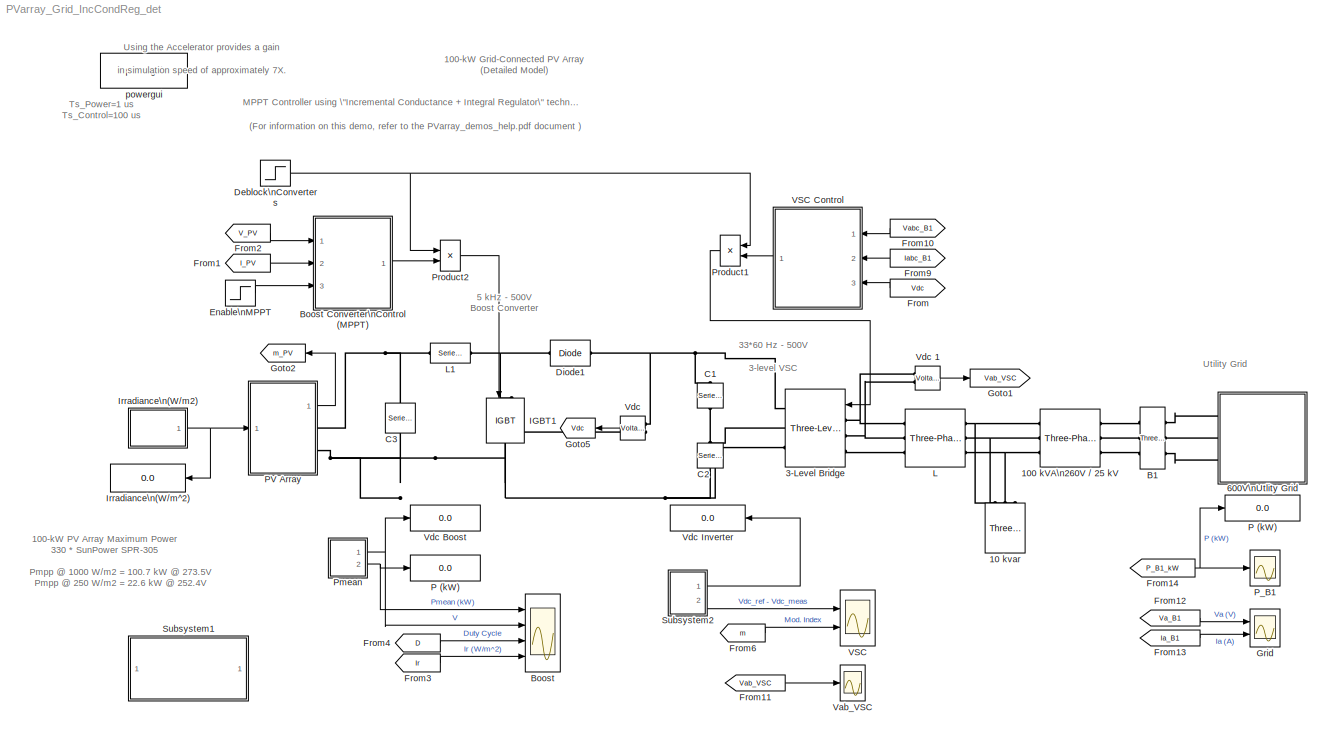
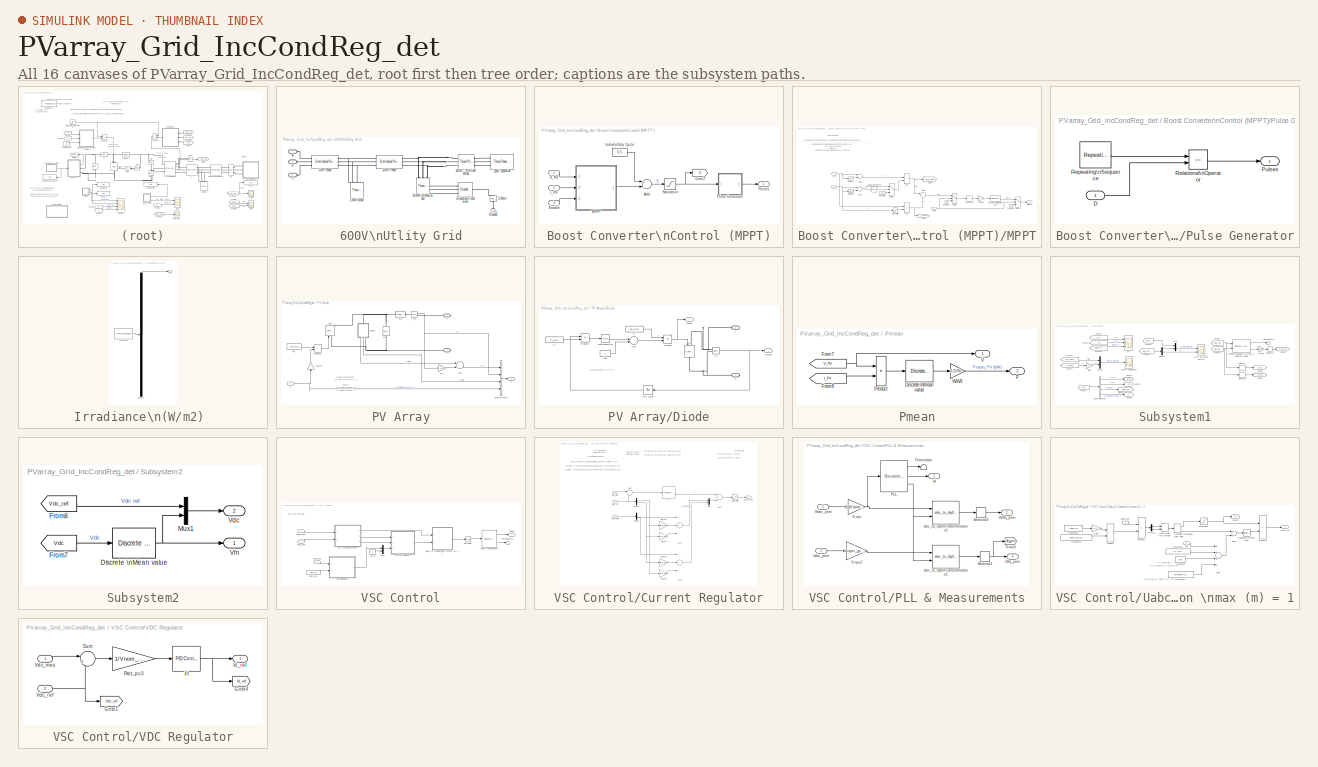
[diagram: thumbnail index - all 16 canvases of the model, root first then tree order]
MODEL PVarray_Grid_IncCondReg_det
KIND model
CONFIG PreLoadFcn = Ts_Power=1e-6\nTs_Control=100e-6
BLOCK [Reference] 10 kvar  REF=powerlib/Elements/Three-Phase\nSeries RLC Load
  ActivePower = 10e3/100
  AttributesFormatString = \\n
  CapacitivePower = 10e3
  Configuration = Y (grounded)
  InductivePower = 0
  LConnTagsString = A|B|C
  LoadType = constant Z
  Measurements = None
  NominalFrequency = 60
  NominalVoltage = 260
  Pabc = [10e3 9e3 11e3]
  Pabcp = [10e3 9e3 11e3]
  Ports = [0, 0, 0, 0, 0, 3]
  QCabc = [100 90 110]
  QCabcp = [100 90 110]
  QLabc = [100 90 110]
  QLabcp = [100 90 110]
  SID = 809
  SourceBlock = powerlib/Elements/Three-Phase\nSeries RLC Load
  SourceProductBaseCode = PS
  SourceProductName = Simscape Electrical
  SourceType = Three-Phase Series RLC Load
  UnbalancedPower = off
  Vabc = [1e3 1e3 1e3]
  Vabcp = [1e3 1e3 1e3]
BLOCK [Reference] 100 kVA\n260V // 25 kV  REF=powerlib/Elements/Three-Phase\nTransformer\n(Two Windings)
  AttributesFormatString = \\n
  BreakLoop = off
  CoreType = Three single-phase transformers
  DataFile = 'hysteresis'
  DataType = off
  DiscreteSolver = Trapezoidal iterative
  Hysteresis = off
  InitialFluxes = [ 0.8 , -0.8 , 0.7 ]
  L0 = 0.5
  Lm = 500
  Measurements = None
  NominalPower = [100e3 , 60 ]
  Ports = [0, 0, 0, 0, 0, 3, 3]
  Rm = 500
  SID = 595
  Saturation = [ 0,0 ; 0.0024,1.2 ; 1.0,1.52 ]
  SetInitialFlux = off
  SetSaturation = off
  SourceBlock = powerlib/Elements/Three-Phase\nTransformer\n(Two Windings)
  SourceProductBaseCode = PS
  SourceProductName = Simscape Electrical
  SourceType = Three-Phase Transformer (Two Windings)
  TransfoNumber = 0
  UNITS = pu
  Winding1 = [ 25e3 , 0.001 , 0.03 ]
  Winding1Connection = Yg
  Winding2 = [ 260 , 0.001 , 0.03 ]
  Winding2Connection = Delta (D1)
BLOCK [Reference] 3-Level Bridge  REF=powerlib/Power\nElectronics/Three-Level Bridge
  Arms = 3
  AttributesFormatString = \\n
  Device = IGBT / Diodes
  ForwardVoltages = [  0  0 ]
  Measurements = None
  Ports = [1, 0, 0, 0, 0, 3, 3]
  Ron = 0.2e-3
  SID = 497
  SbubberCapacitance = inf
  SnubberResistance = 1e6
  SourceBlock = powerlib/Power\nElectronics/Three-Level Bridge
  SourceProductBaseCode = PS
  SourceProductName = Simscape Electrical
  SourceType = Three-Level Bridge
BLOCK [SubSystem] 600V\nUtlity Grid
  Ports = [0, 0, 0, 0, 0, 3]
  RequestExecContextInheritance = off
  SID = 940
BLOCK [Reference] 600V\nUtlity Grid/120 kV // 25 kV\n47 MVA  REF=powerlib/Elements/Three-Phase\nTransformer\n(Two Windings)
  AttributesFormatString = \\n
  BreakLoop = off
  CoreType = Three single-phase transformers
  DataFile = 'basic_model'
  DataType = off
  DiscreteSolver = Trapezoidal iterative
  Hysteresis = off
  InitialFluxes = [ 0.8 , -0.8 , 0.7 ]
  L0 = 0.5
  Lm = 500
  Measurements = None
  NominalPower = [47e6 60 ]
  Ports = [0, 0, 0, 0, 0, 3, 3]
  Rm = 500
  SID = 1146
  Saturation = [ 0,0  ;  0.005,1.2  ;  1.0,1.4 ]
  SetInitialFlux = off
  SetSaturation = off
  SourceBlock = powerlib/Elements/Three-Phase\nTransformer\n(Two Windings)
  SourceProductBaseCode = PS
  SourceProductName = Simscape Electrical
  SourceType = Three-Phase Transformer (Two Windings)
  TransfoNumber = 0
  UNITS = pu
  Winding1 = [ 120e3  0.08/30   0.08 ]
  Winding1Connection = Yg
  Winding2 = [ 25e3  0.08/30  0.08]
  Winding2Connection = Delta (D1)
BLOCK [Reference] 600V\nUtlity Grid/120kV 2500MVA  REF=powerlib/Electrical\nSources/Three-Phase Source
  BaseVoltage = 120e3
  BusType = swing
  Frequency = 60
  Inductance = 16.58e-3
  InternalConnection = Yg
  NonIdealSource = on
  PhaseAngle = 0
  PhaseAngles_phases = [0 -120 +120]
  Ports = [0, 0, 0, 0, 0, 0, 3]
  Pref = 0
  Prefabc = [10e3, 10e3, 10e3]
  Qmax = inf
  Qmin = -inf
  Qref = 0
  Qrefabc = [0, 0, 0]
  Resistance = 0.8929
  SID = 1165
  ShortCircuitLevel = 2500e6
  SourceBlock = powerlib/Electrical\nSources/Three-Phase Source
  SourceProductBaseCode = PS
  SourceProductName = Simscape Electrical
  SourceType = Three-Phase Source
  SpecifyImpedance = on
  Voltage = 120e3
  VoltagePhases = off
  Voltage_phases = [25e3 25e3 25e3]/sqrt(3)
  XRratio = 7
BLOCK [Reference] 600V\nUtlity Grid/14-km Feeder  REF=powerlib/Elements/Distributed Parameters Line
  Capacitance = [11.33e-009 5.01e-009]
  Frequency = 60
  I1 = ones(3,3)
  I2 = ones(3,3)
  Inductance = [1.05e-3 3.32e-3]
  Length = 14
  Measurements = None
  Phases = 3
  Ports = [0, 0, 0, 0, 0, 3, 3]
  Resistance = [0.1153 0.413]
  SID = 1166
  SourceBlock = powerlib/Elements/Distributed Parameters Line
  SourceProductBaseCode = PS
  SourceProductName = Simscape Electrical
  SourceType = Distributed Parameters Line
  V1 = ones(3,3)
  V2 = ones(3,3)
  nHarmo = 1
  x1 = [-5.8e-05 3.86893483226121e-09 0 0;-5.7e-05 3.86863781931287e-09 0 0;-5.6e-05 3.86834025654481e-09 0 0;-5.5e-05 3.86804214399933e-09 0 0;-5.4e-05 3.8677434817188e-09 0 0;-5.3e-05 3.86744426974566e-09 0 0;-5.2e-05 3.86714450812244e-09 0 0;-5.1e-05 3.86684419689175e-09 0 0;-5e-05 3.86654333609625e-09 0 0;-4.9e-05 3.86624192577872e-09 -3790.50088209685 -24060.9143986491;-4.8e-05 3.86593996598198e-09 ...<+3097ch>
  x2 = [-5.8e-05 4.13964869045981e-09 0 0;-5.7e-05 4.13926412209804e-09 0 0;-5.6e-05 4.13887896545453e-09 0 0;-5.5e-05 4.13849322058402e-09 0 0;-5.4e-05 4.13810688754132e-09 0 0;-5.3e-05 4.13771996638135e-09 0 0;-5.2e-05 4.1373324571591e-09 0 0;-5.1e-05 4.13694435992963e-09 0 0;-5e-05 4.13655567474811e-09 0 0;-4.9e-05 4.13616640166977e-09 -3379.33798533028 -24243.9018981742;-4.8e-05 4.13577654074994e-09 ...<+3098ch>
  x3 = [-5.8e-05 2.1249422545882e-11 0 0;-5.7e-05 2.12530209427396e-11 0 0;-5.6e-05 2.1256616319069e-11 0 0;-5.5e-05 2.12602086743592e-11 0 0;-5.4e-05 2.12637980080996e-11 0 0;-5.3e-05 2.126738431978e-11 0 0;-5.2e-05 2.12709676088909e-11 0 0;-5.1e-05 2.12745478749228e-11 0 0;-5e-05 2.12781251173671e-11 0 0;-4.9e-05 2.12816993357152e-11 -23.610210034622 -155.666879550872;-4.8e-05 2.12852705294593e-11 -23....<+3093ch>
  x4 = [-5.8e-05 -1.15723579337896e-11 0 0;-5.7e-05 -1.15764232992851e-11 0 0;-5.6e-05 -1.15804870195128e-11 0 0;-5.5e-05 -1.1584549093895e-11 0 0;-5.4e-05 -1.15886095218544e-11 0 0;-5.3e-05 -1.15926683028139e-11 0 0;-5.2e-05 -1.15967254361968e-11 0 0;-5.1e-05 -1.16007809214263e-11 0 0;-5e-05 -1.16048347579262e-11 0 0;-4.9e-05 -1.16088869451202e-11 -1.28892375629152 -2.16547060902535;-4.8e-05 -1.16129374...<+3153ch>
  x5 = 5.70973484498186e-05
BLOCK [Reference] 600V\nUtlity Grid/2-MW\nLoad  REF=powerlib/Elements/Three-Phase\nParallel RLC Load
  ActivePower = 2e6
  AttributesFormatString = \\n
  CapacitivePower = 0
  Configuration = Y (grounded)
  InductivePower = 0
  LConnTagsString = A|B|C
  LoadType = constant Z
  Measurements = None
  NominalFrequency = 60
  NominalVoltage = 25e3
  Pabc = [10e3 9e3 11e3]
  Pabcp = [10e3 9e3 11e3]
  Ports = [0, 0, 0, 0, 0, 3]
  QCabc = [100 90 110]
  QCabcp = [100 90 110]
  QLabc = [100 90 110]
  QLabcp = [100 90 110]
  SID = 1168
  SourceBlock = powerlib/Elements/Three-Phase\nParallel RLC Load
  SourceProductBaseCode = PS
  SourceProductName = Simscape Electrical
  SourceType = Three-Phase Parallel RLC Load
  UnbalancedPower = off
  Vabc = [1e3 1e3 1e3]
  Vabcp = [1e3 1e3 1e3]
BLOCK [Reference] 600V\nUtlity Grid/3.3ohms   REF=powerlib/Elements/Series RLC Branch
  BranchType = R
  Capacitance = []
  Inductance = []
  InitialCurrent = 0
  InitialVoltage = 0
  LConnTagsString = __new0
  Measurements = None
  Ports = [0, 0, 0, 0, 0, 1, 1]
  RConnTagsString = __new0
  Resistance = 3.3
  SID = 1149
  SetiL0 = off
  Setx0 = off
  SourceBlock = powerlib/Elements/Series RLC Branch
  SourceProductBaseCode = PS
  SourceProductName = Simscape Electrical
  SourceType = Series RLC Branch
BLOCK [Reference] 600V\nUtlity Grid/30-MW\n2-Mvar\nLoad  REF=powerlib/Elements/Three-Phase\nParallel RLC Load
  ActivePower = 30e6
  AttributesFormatString = \\n
  CapacitivePower = 0
  Configuration = Y (grounded)
  InductivePower = 2e6
  LConnTagsString = A|B|C
  LoadType = constant Z
  Measurements = None
  NominalFrequency = 60
  NominalVoltage = 25e3
  Pabc = [10e3 9e3 11e3]
  Pabcp = [10e3 9e3 11e3]
  Ports = [0, 0, 0, 0, 0, 3]
  QCabc = [100 90 110]
  QCabcp = [100 90 110]
  QLabc = [100 90 110]
  QLabcp = [100 90 110]
  SID = 1167
  SourceBlock = powerlib/Elements/Three-Phase\nParallel RLC Load
  SourceProductBaseCode = PS
  SourceProductName = Simscape Electrical
  SourceType = Three-Phase Parallel RLC Load
  UnbalancedPower = off
  Vabc = [1e3 1e3 1e3]
  Vabcp = [1e3 1e3 1e3]
BLOCK [Reference] 600V\nUtlity Grid/5-km Feeder  REF=powerlib/Elements/Distributed Parameters Line
  Capacitance = [11.33e-009 5.01e-009]
  Frequency = 60
  I1 = ones(3,3)
  I2 = ones(3,3)
  Inductance = [1.05e-3 3.32e-3]
  Length = 5
  Measurements = None
  Phases = 3
  Ports = [0, 0, 0, 0, 0, 3, 3]
  Resistance = [0.1153 0.413]
  SID = 1169
  SourceBlock = powerlib/Elements/Distributed Parameters Line
  SourceProductBaseCode = PS
  SourceProductName = Simscape Electrical
  SourceType = Distributed Parameters Line
  V1 = ones(3,3)
  V2 = ones(3,3)
  nHarmo = 1
  x1 = [-2.1e-05 3.77032655351987e-09 -3536.8883456393 -24100.782456775;-2e-05 3.77000631445996e-09 -3527.80231358572 -24102.1141196072;-1.9e-05 3.76968553959807e-09 -3518.71578015276 -24103.4423569916;-1.8e-05 3.76936422897981e-09 -3509.6287466318 -24104.7671687392;-1.7e-05 3.76904238265082e-09 -3500.54121431434 -24106.0885546618;-1.6e-05 3.76872000065685e-09 -3491.4531844919 -24107.4065145717;-1.5e-05 ...<+958ch>
  x2 = [-2.1e-05 3.85848717314219e-09 -3536.31339562553 -24099.5847724441;-2e-05 3.85816993400167e-09 -3527.22781512915 -24100.9162186104;-1.9e-05 3.85785214652916e-09 -3518.14173333503 -24102.244239499;-1.8e-05 3.85753381076982e-09 -3509.05515153452 -24103.5688349213;-1.7e-05 3.8572149267689e-09 -3499.96807101901 -24104.8900046888;-1.6e-05 3.85689549457171e-09 -3490.88049307998 -24106.2077486139;-1.5e-0...<+958ch>
  x3 = [-2.1e-05 8.43243860018511e-12 -11.2236902755189 -79.1234381044604;-2e-05 8.43641569553715e-12 -11.193860645232 -79.1276637133075;-1.9e-05 8.44039159188637e-12 -11.1640294240479 -79.1318780763489;-1.8e-05 8.44436628866772e-12 -11.1341966162062 -79.1360811929856;-1.7e-05 8.44833978531629e-12 -11.1043622259469 -79.1402730626204;-1.6e-05 8.45231208126737e-12 -11.07452625751 -79.1444536846574;-1.5e-05...<+958ch>
  x4 = [-2.1e-05 9.67844381521477e-13 -12.4922083172284 -78.9091123636644;-2e-05 9.62308848136267e-13 -12.462459395698 -78.9138162077657;-1.9e-05 9.56773177985509e-13 -12.4327087029741 -78.9185088364538;-1.8e-05 9.51237371855945e-13 -12.4029562432851 -78.9231902490618;-1.7e-05 9.45701430534336e-13 -12.3732020208594 -78.9278604449243;-1.6e-05 9.40165354807463e-13 -12.3434460399258 -78.9325194233777;-1.5e-...<+955ch>
  x5 = 2.03919101606495e-05
BLOCK [PMIOPort] 600V\nUtlity Grid/A
  SID = 1161
  Side = Left
BLOCK [PMIOPort] 600V\nUtlity Grid/B
  Port = 2
  SID = 1162
  Side = Left
BLOCK [PMIOPort] 600V\nUtlity Grid/C
  Port = 3
  SID = 1163
  Side = Left
BLOCK [Reference] 600V\nUtlity Grid/Ground3  REF=powerlib/Elements/Ground
  AttributesFormatString = \\n
  LConnTagsString = a
  Ports = [0, 0, 0, 0, 0, 1]
  SID = 1158
  SourceBlock = powerlib/Elements/Ground
  SourceProductBaseCode = PS
  SourceProductName = Simscape Electrical
  SourceType = Ground
BLOCK [Reference] 600V\nUtlity Grid/Grounding\nTransformer   REF=powerlib/Elements/Grounding\nTransformer 
  MagnetizationBranch_SI = [1041.7 3.927e+005]
  MagnetizationBranch_pu = [500 500]
  Measurements = None
  NominalPower = [100e6   60]
  NominalVoltage = 25e3
  Ports = [0, 0, 0, 0, 0, 3, 1]
  SID = 1159
  SourceBlock = powerlib/Elements/Grounding\nTransformer
  SourceProductBaseCode = PS
  SourceProductName = Simscape Electrical
  SourceType = Grounding Transformer
  UNITS = pu
  ZeroSequenceImpedance_SI = [0.052083 589.05]
  ZeroSequenceImpedance_pu = [0.025 0.75]
BLOCK [Reference] B1  REF=powerlib/Measurements/Three-Phase\nV-I Measurement
  CurrentMeasurement = yes
  Ipu = off
  LabelI = Iabc_B1
  LabelV = Vabc_B1
  OutputType = Magnitude
  PSBequivalent = 0
  Pbase = 100e6
  PhasorSimulation = off
  Ports = [0, 0, 0, 0, 0, 3, 3]
  SID = 596
  SetLabelI = on
  SetLabelV = on
  SourceBlock = powerlib/Measurements/Three-Phase\nV-I Measurement
  SourceProductBaseCode = PS
  SourceProductName = Simscape Electrical
  SourceType = Three-Phase VI Measurement
  Vbase = 500e3
  VoltageMeasurement = phase-to-ground
  Vpu = off
  VpuLL = off
BLOCK [Scope] Boost
  Floating = off
  NumInputPorts = 4
  Ports = [4]
  SID = 992
  ScopeSpecificationString = C++SS(StrPVP('Location','[239, 60, 1054, 713]'),StrPVP('Open','on'),StrPVP('ZoomMode','yonly'),MxPVP('AxesTitles',54,'struct(''axes1'',''%<SignalLabel>'',''axes2'',''%<SignalLabel>'',''axes3'',''%<SignalLabel>'',''axes4'',''%<SignalLabel>'')'),MxPVP('ScopeGraphics',57,'struct(''FigureColor'',''[0.5 0.5 0.5]'',''AxesColor'',''[0 0 0]'',''AxesTickColor'',''[1 1 1]'',''LineColors'',''[1 1 0;1 0 1;0 1...<+519ch>
BLOCK [SubSystem] Boost Converter\nControl (MPPT)
  Ports = [3, 1]
  RequestExecContextInheritance = off
  SID = 852
BLOCK [Sum] Boost Converter\nControl (MPPT)/Add
  InputSameDT = off
  Inputs = +-
  OutDataTypeStr = Inherit: Inherit via internal rule
  Ports = [2, 1]
  SID = 745
  SaturateOnIntegerOverflow = off
BLOCK [Inport] Boost Converter\nControl (MPPT)/Enable
  IconDisplay = Port number
  Port = 3
  SID = 1342
BLOCK [Goto] Boost Converter\nControl (MPPT)/Goto7
  GotoTag = D
  SID = 679
  TagVisibility = global
BLOCK [Inport] Boost Converter\nControl (MPPT)/I_PV
  IconDisplay = Port number
  Port = 2
  SID = 984
BLOCK [Constant] Boost Converter\nControl (MPPT)/Initial\nDuty Cycle
  SID = 746
  Value = 0.5
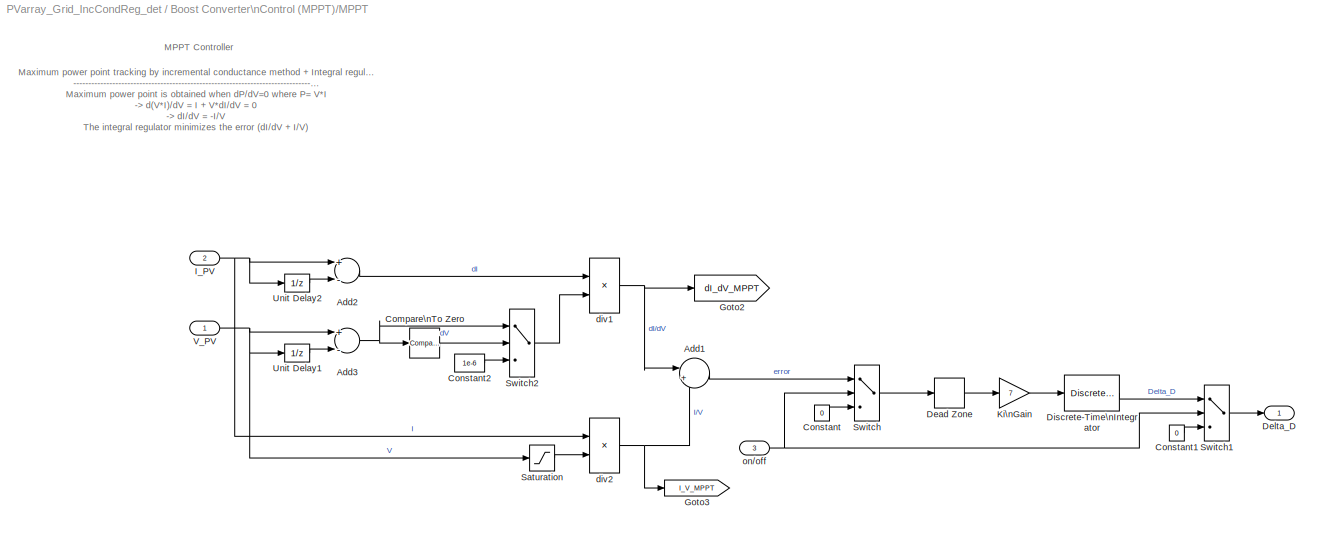
BLOCK [SubSystem] Boost Converter\nControl (MPPT)/MPPT
  Ports = [3, 1]
  RequestExecContextInheritance = off
  SID = 725
BLOCK [Sum] Boost Converter\nControl (MPPT)/MPPT/Add1
  IconShape = round
  InputSameDT = off
  Inputs = |++
  OutDataTypeStr = Inherit: Inherit via internal rule
  Ports = [2, 1]
  SID = 1011
  SaturateOnIntegerOverflow = off
BLOCK [Sum] Boost Converter\nControl (MPPT)/MPPT/Add2
  InputSameDT = off
  Inputs = +-
  OutDataTypeStr = Inherit: Inherit via internal rule
  Ports = [2, 1]
  SID = 1223
  SaturateOnIntegerOverflow = off
BLOCK [Sum] Boost Converter\nControl (MPPT)/MPPT/Add3
  InputSameDT = off
  Inputs = +-
  OutDataTypeStr = Inherit: Inherit via internal rule
  Ports = [2, 1]
  SID = 1218
  SaturateOnIntegerOverflow = off
BLOCK [Reference] Boost Converter\nControl (MPPT)/MPPT/Compare\nTo Zero  REF=simulink/Logic and Bit\nOperations/Compare\nTo Zero
  OutDataTypeStr = uint8
  Ports = [1, 1]
  SID = 1221
  SourceBlock = simulink/Logic and Bit\nOperations/Compare\nTo Zero
  SourceProductBaseCode = SL
  SourceProductName = Simulink
  SourceType = Compare To Zero
  ZeroCross = on
  relop = ~=
BLOCK [Constant] Boost Converter\nControl (MPPT)/MPPT/Constant
  SID = 1012
  Value = 0
BLOCK [Constant] Boost Converter\nControl (MPPT)/MPPT/Constant1
  SID = 1228
  Value = 0
BLOCK [Constant] Boost Converter\nControl (MPPT)/MPPT/Constant2
  SID = 1222
  Value = 1e-6
BLOCK [DeadZone] Boost Converter\nControl (MPPT)/MPPT/Dead Zone
  LowerValue = -0.02
  SID = 1199
  UpperValue = +0.02
BLOCK [Outport] Boost Converter\nControl (MPPT)/MPPT/Delta_D
  IconDisplay = Port number
  SID = 741
BLOCK [DiscreteIntegrator] Boost Converter\nControl (MPPT)/MPPT/Discrete-Time\nIntegrator
  ICPrevOutput = DiscIntNeverNeededParam
  ICPrevScaledInput = DiscIntNeverNeededParam
  LimitOutput = on
  LowerSaturationLimit = -1
  Ports = [1, 1]
  SID = 1018
  SampleTime = Ts_Control
  UpperSaturationLimit = 1
  gainval = 1
BLOCK [Goto] Boost Converter\nControl (MPPT)/MPPT/Goto2
  GotoTag = dI_dV_MPPT
  SID = 1021
  TagVisibility = global
BLOCK [Goto] Boost Converter\nControl (MPPT)/MPPT/Goto3
  GotoTag = I_V_MPPT
  SID = 1022
  TagVisibility = global
BLOCK [Inport] Boost Converter\nControl (MPPT)/MPPT/I_PV
  IconDisplay = Port number
  Port = 2
  SID = 990
BLOCK [Gain] Boost Converter\nControl (MPPT)/MPPT/Ki\nGain
  Gain = 7
  OutDataTypeStr = Inherit: Inherit via internal rule
  ParamDataTypeStr = Inherit: Inherit via internal rule
  SID = 1343
  SaturateOnIntegerOverflow = off
BLOCK [Saturate] Boost Converter\nControl (MPPT)/MPPT/Saturation
  InputPortMap = u0
  LowerLimit = eps
  Ports = [1, 1]
  SID = 1115
  UpperLimit = inf
BLOCK [Switch] Boost Converter\nControl (MPPT)/MPPT/Switch
  InputSameDT = off
  SID = 1025
  SaturateOnIntegerOverflow = off
  Threshold = 0.5
BLOCK [Switch] Boost Converter\nControl (MPPT)/MPPT/Switch1
  InputSameDT = off
  SID = 1227
  SaturateOnIntegerOverflow = off
  Threshold = 0.5
BLOCK [Switch] Boost Converter\nControl (MPPT)/MPPT/Switch2
  Criteria = u2 ~= 0
  InputSameDT = off
  SID = 1220
  SaturateOnIntegerOverflow = off
BLOCK [UnitDelay] Boost Converter\nControl (MPPT)/MPPT/Unit Delay1
  HasFrameUpgradeWarning = on
  SID = 1230
  SampleTime = Ts_Control
BLOCK [UnitDelay] Boost Converter\nControl (MPPT)/MPPT/Unit Delay2
  HasFrameUpgradeWarning = on
  SID = 1224
  SampleTime = Ts_Control
BLOCK [Inport] Boost Converter\nControl (MPPT)/MPPT/V_PV
  IconDisplay = Port number
  SID = 989
BLOCK [Product] Boost Converter\nControl (MPPT)/MPPT/div1
  InputSameDT = off
  Inputs = */
  OutDataTypeStr = Inherit: Inherit via internal rule
  Ports = [2, 1]
  SID = 1030
  SaturateOnIntegerOverflow = off
BLOCK [Product] Boost Converter\nControl (MPPT)/MPPT/div2
  InputSameDT = off
  Inputs = */
  OutDataTypeStr = Inherit: Inherit via internal rule
  Ports = [2, 1]
  SID = 1225
  SaturateOnIntegerOverflow = off
BLOCK [Inport] Boost Converter\nControl (MPPT)/MPPT/on//off
  IconDisplay = Port number
  Port = 3
  SID = 1009
BLOCK [SubSystem] Boost Converter\nControl (MPPT)/Pulse Generator
  Ports = [1, 1]
  RequestExecContextInheritance = off
  SID = 635
BLOCK [Inport] Boost Converter\nControl (MPPT)/Pulse Generator/D
  IconDisplay = Port number
  SID = 636
BLOCK [Outport] Boost Converter\nControl (MPPT)/Pulse Generator/Pulses
  IconDisplay = Port number
  SID = 640
BLOCK [RelationalOperator] Boost Converter\nControl (MPPT)/Pulse Generator/Relational\nOperator
  InputSameDT = off
  Operator = <=
  OutDataTypeStr = boolean
  Ports = [2, 1]
  SID = 637
BLOCK [Reference] Boost Converter\nControl (MPPT)/Pulse Generator/Repeating\nSequence  REF=simulink/Sources/Repeating\nSequence
  Ports = [0, 1]
  SID = 638
  SourceBlock = simulink/Sources/Repeating\nSequence
  SourceProductBaseCode = SL
  SourceProductName = Simulink
  SourceType = Repeating table
  rep_seq_t = [0  1/Freq]
  rep_seq_y = [0 1]
BLOCK [Outport] Boost Converter\nControl (MPPT)/Pulses
  IconDisplay = Port number
  SID = 853
BLOCK [Saturate] Boost Converter\nControl (MPPT)/Saturation
  InputPortMap = u0
  LowerLimit = 0
  Ports = [1, 1]
  SID = 805
  UpperLimit = 1
BLOCK [Inport] Boost Converter\nControl (MPPT)/V_PV
  IconDisplay = Port number
  SID = 985
BLOCK [Reference] C1  REF=powerlib/Elements/Series RLC Branch
  AttributesFormatString = \\n
  BranchType = C
  Capacitance = 12000e-06
  Inductance = 1.0
  InitialCurrent = 0
  InitialVoltage = 0
  LConnTagsString = __new0
  Measurements = None
  Ports = [0, 0, 0, 0, 0, 1, 1]
  RConnTagsString = __new0
  Resistance = 1.0
  SID = 495
  SetiL0 = off
  Setx0 = off
  SourceBlock = powerlib/Elements/Series RLC Branch
  SourceProductBaseCode = PS
  SourceProductName = Simscape Electrical
  SourceType = Series RLC Branch
BLOCK [Reference] C2  REF=powerlib/Elements/Series RLC Branch
  AttributesFormatString = \\n
  BranchType = C
  Capacitance = 12000e-06
  Inductance = 1.0
  InitialCurrent = 0
  InitialVoltage = 0
  LConnTagsString = __new0
  Measurements = None
  Ports = [0, 0, 0, 0, 0, 1, 1]
  RConnTagsString = __new0
  Resistance = 1.0
  SID = 1075
  SetiL0 = off
  Setx0 = off
  SourceBlock = powerlib/Elements/Series RLC Branch
  SourceProductBaseCode = PS
  SourceProductName = Simscape Electrical
  SourceType = Series RLC Branch
BLOCK [Reference] C3  REF=powerlib/Elements/Series RLC Branch
  AttributesFormatString = \\n
  BranchType = C
  Capacitance = 100e-6
  Inductance = 1.0
  InitialCurrent = 0
  InitialVoltage = 0
  LConnTagsString = __new0
  Measurements = Branch voltage
  Ports = [0, 0, 0, 0, 0, 1, 1]
  RConnTagsString = __new0
  Resistance = 1.0
  SID = 676
  SetiL0 = off
  Setx0 = off
  SourceBlock = powerlib/Elements/Series RLC Branch
  SourceProductBaseCode = PS
  SourceProductName = Simscape Electrical
  SourceType = Series RLC Branch
BLOCK [Step] Deblock\nConverters
  SID = 673
  SampleTime = 0
  Time = 0.05
BLOCK [Reference] Diode1  REF=powerlib/Power\nElectronics/Diode
  Cs = inf
  IC = 0
  Lon = 0
  Measurements = off
  Ports = [0, 0, 0, 0, 0, 1, 1]
  Ron = 1e-4
  Rs = inf
  SID = 352
  SourceBlock = powerlib/Power\nElectronics/Diode
  SourceProductBaseCode = PS
  SourceProductName = Simscape Electrical
  SourceType = Diode
  UseSnubber = off
  Vf = 0
BLOCK [Step] Enable\nMPPT
  SID = 1341
  SampleTime = 0
  Time = 0.4
BLOCK [From] From
  GotoTag = Vdc
  SID = 605
  TagVisibility = global
BLOCK [From] From1
  CloseFcn = tagdialog Close
  GotoTag = I_PV
  SID = 986
  TagVisibility = global
BLOCK [From] From10
  CloseFcn = tagdialog Close
  GotoTag = Vabc_B1
  SID = 601
  TagVisibility = global
BLOCK [From] From11
  CloseFcn = tagdialog Close
  GotoTag = Vab_VSC
  SID = 1008
  TagVisibility = global
BLOCK [From] From12
  CloseFcn = tagdialog Close
  GotoTag = Va_B1
  SID = 1088
  TagVisibility = global
BLOCK [From] From13
  CloseFcn = tagdialog Close
  GotoTag = Ia_B1
  SID = 1089
  TagVisibility = global
BLOCK [From] From14
  CloseFcn = tagdialog Close
  GotoTag = P_B1_kW
  SID = 1090
  TagVisibility = global
BLOCK [From] From2
  CloseFcn = tagdialog Close
  GotoTag = V_PV
  SID = 988
  TagVisibility = global
BLOCK [From] From3
  CloseFcn = tagdialog Close
  GotoTag = Ir
  SID = 993
  TagVisibility = global
BLOCK [From] From4
  CloseFcn = tagdialog Close
  GotoTag = D
  SID = 994
  TagVisibility = global
BLOCK [From] From6
  CloseFcn = tagdialog Close
  GotoTag = m
  SID = 1000
  TagVisibility = global
BLOCK [From] From9
  CloseFcn = tagdialog Close
  GotoTag = Iabc_B1
  SID = 600
  TagVisibility = global
BLOCK [Goto] Goto1
  GotoTag = Vab_VSC
  SID = 1006
  TagVisibility = global
BLOCK [Goto] Goto2
  GotoTag = m_PV
  SID = 1209
  TagVisibility = global
BLOCK [Goto] Goto5
  GotoTag = Vdc
  SID = 603
  TagVisibility = global
BLOCK [Scope] Grid
  Floating = off
  NumInputPorts = 2
  Ports = [2]
  SID = 1087
  ScopeSpecificationString = C++SS(StrPVP('Location','[1356, 103, 2480, 856]'),StrPVP('Open','off'),StrPVP('ZoomMode','xonly'),MxPVP('AxesTitles',54,'struct(''axes1'',''%<SignalLabel>'',''axes2'',''%<SignalLabel>'')'),MxPVP('ScopeGraphics',57,'struct(''FigureColor'',''[0.5 0.5 0.5]'',''AxesColor'',''[0 0 0]'',''AxesTickColor'',''[1 1 1]'',''LineColors'',''[1 1 0;1 0 1;0 1 1;1 0 0;0 1 0;0 0 1]'',''LineStyles'',''-|-|-|-|-|-'',...<+411ch>
BLOCK [Reference] IGBT1  REF=powerlib/Power\nElectronics/IGBT
  Cs = inf
  IC = 0
  Lon = 0
  Measurements = off
  Ports = [1, 0, 0, 0, 0, 1, 1]
  Ron = 0.001
  Rs = 1e5
  SID = 948
  SourceBlock = powerlib/Power\nElectronics/IGBT
  SourceProductBaseCode = PS
  SourceProductName = Simscape Electrical
  SourceType = IGBT
  Tf = 0
  Tt = 0
  Vf = 0
BLOCK [SubSystem] Irradiance\n(W//m2) 
  ClipboardFcn = sigbuilder_block('clipboard');
  CloseFcn = sigbuilder_block('close');
  ContinueFcn = sigbuilder_block('continue')
  CopyFcn = sigbuilder_block('copy');
  DeleteFcn = sigbuilder_block('delete');
  LoadFcn = sigbuilder_block('load');
  MaskHideContents = on
  ModelCloseFcn = sigbuilder_block('modelClose');
  NameChangeFcn = sigbuilder_block('namechange');
  OpenFcn = sigbuilder_block('open',[9 136.5 954 513.75 ]);
  PauseFcn = sigbuilder_block('pause')
  Ports = [0, 1]
  PreSaveFcn = sigbuilder_block('preSave');
  RequestExecContextInheritance = off
  SID = 1210
  StartFcn = sigbuilder_block('start');
  StopFcn = sigbuilder_block('stop');
  Tag = STV Subsys
BLOCK [Demux] Irradiance\n(W//m2) /Demux
  Outputs = 1
  Ports = [1, 1]
  SID = 1210:1
  Tag = STV Demux
BLOCK [FromWorkspace] Irradiance\n(W//m2) /FromWs
  SID = 1210:2
  SampleTime = 0
  SigBuilderData = DataTag0
  Tag = STV FromWs
  VariableName = tuvar
  VnvData = DataTag1
  ZeroCross = on
BLOCK [Outport] Irradiance\n(W//m2) /Ir
  IconDisplay = Port number
  SID = 1210:3
  Tag = STV Outport
BLOCK [Display] Irradiance\n(W//m^2)
  Decimation = 1000
  Format = bank
  Ports = [1]
  SID = 1122
BLOCK [Reference] L  REF=powerlib/Elements/Three-Phase\nSeries RLC Branch
  AttributesFormatString = \\n
  BranchType = RL
  Capacitance = inf
  Inductance = 250e-6
  LConnTagsString = A|B|C
  Measurements = None
  Ports = [0, 0, 0, 0, 0, 3, 3]
  RConnTagsString = A|B|C
  Resistance = 2e-3
  SID = 498
  SourceBlock = powerlib/Elements/Three-Phase\nSeries RLC Branch
  SourceProductBaseCode = PS
  SourceProductName = Simscape Electrical
  SourceType = Three-Phase Series RLC Branch
BLOCK [Reference] L1  REF=powerlib/Elements/Series RLC Branch
  BranchType = RL
  Capacitance = 1e-6
  Inductance = 5e-3
  InitialCurrent = 0
  InitialVoltage = 0
  LConnTagsString = __new0
  Measurements = None
  Ports = [0, 0, 0, 0, 0, 1, 1]
  RConnTagsString = __new0
  Resistance = 0.005
  SID = 343
  SetiL0 = off
  Setx0 = off
  SourceBlock = powerlib/Elements/Series RLC Branch
  SourceProductBaseCode = PS
  SourceProductName = Simscape Electrical
  SourceType = Series RLC Branch
BLOCK [Display] P (kW)
  Decimation = 2000
  Format = bank
  Ports = [1]
  SID = 1091
BLOCK [Display] P (kW) 
  Decimation = 2000
  Format = bank
  Ports = [1]
  SID = 1117
BLOCK [SubSystem] PV Array
  Ports = [1, 1, 0, 0, 0, 0, 2]
  RequestExecContextInheritance = off
  SID = 1233
BLOCK [PMIOPort] PV Array/+
  SID = 1259
  Side = Right
BLOCK [PMIOPort] PV Array/-
  Port = 2
  SID = 1260
  Side = Right
BLOCK [Sum] PV Array/Add
  InputSameDT = off
  Inputs = +-
  OutDataTypeStr = Inherit: Inherit via internal rule
  Ports = [2, 1]
  SID = 1235
  SaturateOnIntegerOverflow = off
BLOCK [BusCreator] PV Array/Bus\nCreator
  DisplayOption = bar
  InheritFromInputs = on
  Inputs = 4
  Ports = [4, 1]
  SID = 1236
BLOCK [SubSystem] PV Array/Diode
  Ports = [0, 2, 0, 0, 0, 1, 1]
  RequestExecContextInheritance = off
  SID = 1237
BLOCK [PMIOPort] PV Array/Diode/A
  SID = 1247
  Side = Left
BLOCK [Sum] PV Array/Diode/Add
  InputSameDT = off
  Inputs = +-
  OutDataTypeStr = Inherit: Inherit via internal rule
  Ports = [2, 1]
  SID = 1238
  SaturateOnIntegerOverflow = off
BLOCK [Reference] PV Array/Diode/Id  REF=powerlib/Electrical\nSources/Controlled Current Source
  Amplitude = 0
  Frequency = 0
  Initialize = on
  Measurements = None
  Phase = 0
  Ports = [1, 0, 0, 0, 0, 1, 1]
  SID = 1239
  SourceBlock = powerlib/Electrical\nSources/Controlled Current Source
  SourceProductBaseCode = PS
  SourceProductName = Simscape Electrical
  SourceType = Controlled Current Source
  Source_Type = AC
BLOCK [Outport] PV Array/Diode/Idiode
  IconDisplay = Port number
  Port = 2
  SID = 1250
BLOCK [Constant] PV Array/Diode/Is
  SID = 1240
  Value = Isat_array
BLOCK [PMIOPort] PV Array/Diode/K
  Port = 2
  SID = 1248
  Side = Right
BLOCK [Math] PV Array/Diode/Math\nFunction
  Ports = [1, 1]
  SID = 1372
BLOCK [Product] PV Array/Diode/Product
  InputSameDT = off
  OutDataTypeStr = Inherit: Inherit via internal rule
  Ports = [2, 1]
  SID = 1242
  SaturateOnIntegerOverflow = off
BLOCK [Product] PV Array/Diode/Product1
  InputSameDT = off
  Inputs = */
  OutDataTypeStr = Inherit: Inherit via internal rule
  Ports = [2, 1]
  SID = 1243
  SaturateOnIntegerOverflow = off
BLOCK [UnitDelay] PV Array/Diode/Unit Delay
  HasFrameUpgradeWarning = on
  SID = 1338
  SampleTime = Ts
BLOCK [Constant] PV Array/Diode/VT
  SID = 1244
  Value = VT_array
BLOCK [Reference] PV Array/Diode/Vd  REF=powerlib/Measurements/Voltage Measurement
  OutputType = Complex
  PSBequivalent = 0
  PhasorSimulation = off
  Ports = [0, 1, 0, 0, 0, 2]
  SID = 1245
  SourceBlock = powerlib/Measurements/Voltage Measurement
  SourceProductBaseCode = PS
  SourceProductName = Simscape Electrical
  SourceType = Voltage Measurement
BLOCK [Outport] PV Array/Diode/Vdiode
  IconDisplay = Port number
  SID = 1249
BLOCK [Constant] PV Array/Diode/one
  SID = 1246
BLOCK [Reference] PV Array/I_PV  REF=powerlib/Measurements/Current Measurement
  OutputType = Complex
  PSBequivalent = 0
  PhasorSimulation = off
  Ports = [0, 1, 0, 0, 0, 1, 1]
  SID = 1251
  SourceBlock = powerlib/Measurements/Current Measurement
  SourceProductBaseCode = PS
  SourceProductName = Simscape Electrical
  SourceType = Current Measurement
BLOCK [Reference] PV Array/Iph  REF=powerlib/Electrical\nSources/Controlled Current Source
  Amplitude = 0
  Frequency = 0
  Initialize = on
  Measurements = None
  Phase = 0
  Ports = [1, 0, 0, 0, 0, 1, 1]
  SID = 1252
  SourceBlock = powerlib/Electrical\nSources/Controlled Current Source
  SourceProductBaseCode = PS
  SourceProductName = Simscape Electrical
  SourceType = Controlled Current Source
  Source_Type = AC
BLOCK [Constant] PV Array/Iph_
  SID = 1253
  Value = Iph_array
BLOCK [Inport] PV Array/Ir
  IconDisplay = Port number
  SID = 1234
BLOCK [Product] PV Array/Product1
  InputSameDT = off
  Inputs = **
  OutDataTypeStr = Inherit: Inherit via internal rule
  Ports = [2, 1]
  SID = 1254
  SaturateOnIntegerOverflow = off
BLOCK [Reference] PV Array/Rp  REF=powerlib/Elements/Series RLC Branch
  BranchType = R
  Capacitance = 1e-6
  Inductance = 1e-3
  InitialCurrent = 0
  InitialVoltage = 0
  LConnTagsString = __new0
  Measurements = Branch current
  Ports = [0, 0, 0, 0, 0, 1, 1]
  RConnTagsString = __new0
  Resistance = Rp_array
  SID = 1255
  SetiL0 = off
  Setx0 = off
  SourceBlock = powerlib/Elements/Series RLC Branch
  SourceProductBaseCode = PS
  SourceProductName = Simscape Electrical
  SourceType = Series RLC Branch
BLOCK [Reference] PV Array/Rs  REF=powerlib/Elements/Series RLC Branch
  BranchType = R
  Capacitance = 1e-6
  Inductance = 1e-3
  InitialCurrent = 0
  InitialVoltage = 0
  LConnTagsString = __new0
  Measurements = None
  Ports = [0, 0, 0, 0, 0, 1, 1]
  RConnTagsString = __new0
  Resistance = Rs_array
  SID = 1256
  SetiL0 = off
  Setx0 = off
  SourceBlock = powerlib/Elements/Series RLC Branch
  SourceProductBaseCode = PS
  SourceProductName = Simscape Electrical
  SourceType = Series RLC Branch
BLOCK [Gain] PV Array/Rs_
  Gain = Rs_array
  OutDataTypeStr = Inherit: Inherit via internal rule
  ParamDataTypeStr = Inherit: Inherit via internal rule
  SID = 1257
  SaturateOnIntegerOverflow = off
BLOCK [Outport] PV Array/m
  IconDisplay = Port number
  SID = 1261
BLOCK [Gain] PV Array/t0_kW
  Gain = 1e-3
  OutDataTypeStr = Inherit: Inherit via internal rule
  ParamDataTypeStr = Inherit: Inherit via internal rule
  SID = 1258
  SaturateOnIntegerOverflow = off
BLOCK [Scope] P_B1
  Floating = off
  NumInputPorts = 1
  Ports = [1]
  SID = 1118
  ScopeSpecificationString = C++SS(StrPVP('Location','[857, 526, 1264, 829]'),StrPVP('Open','off'),StrPVP('ZoomMode','yonly'),MxPVP('AxesTitles',54,'struct(''axes1'',''%<SignalLabel>'')'),StrPVP('ShowLegends','off'),StrPVP('TimeRange','2'),StrPVP('YMin','-20'),StrPVP('YMax','120'),StrPVP('SaveName','ScopeData1'),StrPVP('DataFormat','StructureWithTime'),StrPVP('LimitDataPoints','off'),StrPVP('Decimation','100'),StrPVP('BlockPa...<+58ch>
BLOCK [SubSystem] Pmean
  Ports = [0, 2]
  RequestExecContextInheritance = off
  SID = 1171
BLOCK [Reference] Pmean/Discrete \nMean value  REF=powerlib_extras/Discrete\nMeasurements/Discrete \nMean value
  Freq = 60
  Ports = [1, 1]
  SID = 1229
  SourceBlock = powerlib_extras/Discrete\nMeasurements/Discrete \nMean value
  SourceProductBaseCode = PS
  SourceProductName = Simscape Electrical
  SourceType = Discrete Mean value
  Ts = Ts_Control
  Vinit = 0
BLOCK [From] Pmean/From7
  GotoTag = V_PV
  SID = 995
  TagVisibility = global
BLOCK [From] Pmean/From8
  GotoTag = I_PV
  SID = 996
  TagVisibility = global
BLOCK [Outport] Pmean/P
  IconDisplay = Port number
  Port = 2
  SID = 1172
BLOCK [Product] Pmean/Product
  InputSameDT = off
  OutDataTypeStr = Inherit: Inherit via internal rule
  Ports = [2, 1]
  SID = 997
  SaturateOnIntegerOverflow = off
BLOCK [Outport] Pmean/V
  IconDisplay = Port number
  SID = 1174
BLOCK [Gain] Pmean/WkW
  Gain = 1/1000
  OutDataTypeStr = Inherit: Inherit via internal rule
  ParamDataTypeStr = Inherit: Inherit via internal rule
  SID = 998
  SaturateOnIntegerOverflow = off
BLOCK [Product] Product1
  InputSameDT = off
  OutDataTypeStr = Inherit: Inherit via internal rule
  Ports = [2, 1]
  SID = 982
  SaturateOnIntegerOverflow = off
BLOCK [Product] Product2
  InputSameDT = off
  OutDataTypeStr = Inherit: Inherit via internal rule
  Ports = [2, 1]
  SID = 674
  SaturateOnIntegerOverflow = off
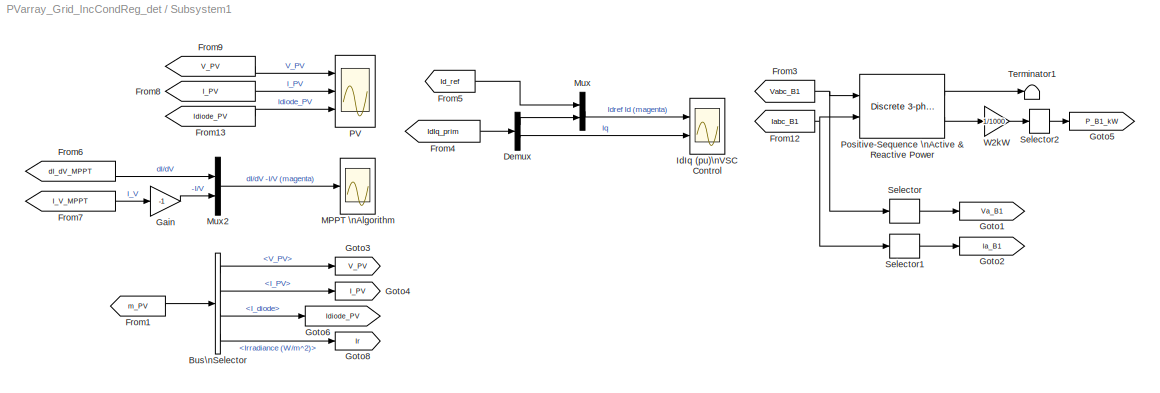
BLOCK [SubSystem] Subsystem1
  Ports = []
  RequestExecContextInheritance = off
  SID = 682
BLOCK [BusSelector] Subsystem1/Bus\nSelector
  OutputAsBus = off
  OutputSignals = V_PV,I_PV,I_diode,Irradiance (W/m^2)
  Ports = [1, 4]
  SID = 1203
BLOCK [Demux] Subsystem1/Demux
  DisplayOption = bar
  Outputs = 2
  Ports = [1, 2]
  SID = 1100
BLOCK [From] Subsystem1/From1
  GotoTag = m_PV
  SID = 1204
  TagVisibility = global
BLOCK [From] Subsystem1/From12
  CloseFcn = tagdialog Close
  GotoTag = Iabc_B1
  SID = 686
  TagVisibility = global
BLOCK [From] Subsystem1/From13
  GotoTag = Idiode_PV
  SID = 1121
  TagVisibility = global
BLOCK [From] Subsystem1/From3
  CloseFcn = tagdialog Close
  GotoTag = Vabc_B1
  SID = 691
  TagVisibility = global
BLOCK [From] Subsystem1/From4
  CloseFcn = tagdialog Close
  GotoTag = IdIq_prim
  SID = 1096
  TagVisibility = global
BLOCK [From] Subsystem1/From5
  CloseFcn = tagdialog Close
  GotoTag = Id_ref
  SID = 1098
  TagVisibility = global
BLOCK [From] Subsystem1/From6
  GotoTag = dI_dV_MPPT
  SID = 1076
  TagVisibility = global
BLOCK [From] Subsystem1/From7
  GotoTag = I_V_MPPT
  SID = 1077
  TagVisibility = global
BLOCK [From] Subsystem1/From8
  GotoTag = I_PV
  SID = 1084
  TagVisibility = global
BLOCK [From] Subsystem1/From9
  GotoTag = V_PV
  SID = 1085
  TagVisibility = global
BLOCK [Gain] Subsystem1/Gain
  Gain = -1
  OutDataTypeStr = Inherit: Inherit via internal rule
  ParamDataTypeStr = Inherit: Inherit via internal rule
  SID = 1123
  SaturateOnIntegerOverflow = off
BLOCK [Goto] Subsystem1/Goto1
  GotoTag = Va_B1
  SID = 1112
  TagVisibility = global
BLOCK [Goto] Subsystem1/Goto2
  GotoTag = Ia_B1
  SID = 1113
  TagVisibility = global
BLOCK [Goto] Subsystem1/Goto3
  GotoTag = V_PV
  SID = 1205
  TagVisibility = global
BLOCK [Goto] Subsystem1/Goto4
  GotoTag = I_PV
  SID = 1206
  TagVisibility = global
BLOCK [Goto] Subsystem1/Goto5
  GotoTag = P_B1_kW
  SID = 1092
  TagVisibility = global
BLOCK [Goto] Subsystem1/Goto6
  GotoTag = Idiode_PV
  SID = 1207
  TagVisibility = global
BLOCK [Goto] Subsystem1/Goto8
  GotoTag = Ir
  SID = 1208
  TagVisibility = global
BLOCK [Scope] Subsystem1/IdIq (pu)\nVSC Control
  Floating = off
  NumInputPorts = 2
  Ports = [2]
  SID = 1101
  ScopeSpecificationString = C++SS(StrPVP('Location','[2868, 202, 3476, 738]'),StrPVP('Open','off'),StrPVP('ZoomMode','xonly'),MxPVP('AxesTitles',54,'struct(''axes1'',''%<SignalLabel>'',''axes2'',''%<SignalLabel>'')'),StrPVP('ShowLegends','off'),StrPVP('TimeRange','2'),StrPVP('YMin','-0.5~-0.5'),StrPVP('YMax','1.5~1.5'),StrPVP('SaveName','ScopeData8'),StrPVP('DataFormat','StructureWithTime'),StrPVP('LimitDataPoints','off'),St...<+98ch>
BLOCK [Scope] Subsystem1/MPPT \nAlgorithm
  Floating = off
  NumInputPorts = 1
  Ports = [1]
  SID = 1078
  ScopeSpecificationString = C++SS(StrPVP('Location','[399, 283, 927, 728]'),StrPVP('Open','off'),StrPVP('ZoomMode','yonly'),MxPVP('AxesTitles',54,'struct(''axes1'',''%<SignalLabel>'')'),StrPVP('ShowLegends','off'),StrPVP('TimeRange','2'),StrPVP('YMin','-2'),StrPVP('YMax','0'),StrPVP('SaveName','ScopeData6'),StrPVP('DataFormat','StructureWithTime'),StrPVP('LimitDataPoints','off'),StrPVP('Decimation','100'),StrPVP('BlockParamS...<+54ch>
BLOCK [Mux] Subsystem1/Mux
  DisplayOption = bar
  Inputs = 2
  Ports = [2, 1]
  SID = 1102
BLOCK [Mux] Subsystem1/Mux2
  DisplayOption = bar
  Inputs = 2
  Ports = [2, 1]
  SID = 1124
BLOCK [Scope] Subsystem1/PV
  Floating = off
  NumInputPorts = 3
  Ports = [3]
  SID = 1079
  ScopeSpecificationString = C++SS(StrPVP('Location','[705, 376, 1275, 852]'),StrPVP('Open','off'),StrPVP('ZoomMode','yonly'),MxPVP('AxesTitles',54,'struct(''axes1'',''%<SignalLabel>'',''axes2'',''%<SignalLabel>'',''axes3'',''%<SignalLabel>'')'),MxPVP('ScopeGraphics',57,'struct(''FigureColor'',''[0.5 0.5 0.5]'',''AxesColor'',''[0 0 0]'',''AxesTickColor'',''[1 1 1]'',''LineColors'',''[1 1 0;1 0 1;0 1 1;1 0 0;0 1 0;0 0 1]'',''L...<+437ch>
BLOCK [Reference] Subsystem1/Positive-Sequence \nActive & Reactive Power  REF=powerlib_extras/Discrete\nMeasurements/Discrete 3-phase \nPositive-Sequence \nActive & Reactive Power
  Freq = 60
  Par_Iinit = [0 0]
  Par_Vinit = [0 0]
  Ports = [2, 2]
  SID = 684
  SourceBlock = powerlib_extras/Discrete\nMeasurements/Discrete 3-phase \nPositive-Sequence \nActive & Reactive Power
  SourceProductBaseCode = PS
  SourceProductName = Simscape Electrical
  SourceType = Discrete 3-phase Positive-Sequence Active & Reactive Power
  Ts = Ts_Control
BLOCK [Selector] Subsystem1/Selector
  IndexOptions = Index vector (dialog)
  Indices = [1]
  InputPortWidth = 3
  OutputSizes = 1
  Ports = [1, 1]
  SID = 1110
BLOCK [Selector] Subsystem1/Selector1
  IndexOptions = Index vector (dialog)
  Indices = [1]
  InputPortWidth = 3
  OutputSizes = 1
  Ports = [1, 1]
  SID = 1111
BLOCK [Selector] Subsystem1/Selector2
  IndexOptions = Index vector (dialog)
  Indices = [1]
  InputPortWidth = 2
  OutputSizes = 1
  Ports = [1, 1]
  SID = 1125
BLOCK [Terminator] Subsystem1/Terminator1
  SID = 699
BLOCK [Gain] Subsystem1/W2kW
  Gain = 1/1000
  OutDataTypeStr = Inherit: Inherit via internal rule
  ParamDataTypeStr = Inherit: Inherit via internal rule
  SID = 700
  SaturateOnIntegerOverflow = off
BLOCK [SubSystem] Subsystem2
  Ports = [0, 2]
  RequestExecContextInheritance = off
  SID = 1187
BLOCK [Reference] Subsystem2/Discrete \nMean value  REF=powerlib_extras/Discrete\nMeasurements/Discrete \nMean value
  Freq = 60
  Ports = [1, 1]
  SID = 1189
  SourceBlock = powerlib_extras/Discrete\nMeasurements/Discrete \nMean value
  SourceProductBaseCode = PS
  SourceProductName = Simscape Electrical
  SourceType = Discrete Mean value
  Ts = Ts_Control
  Vinit = 0
BLOCK [From] Subsystem2/From7
  CloseFcn = tagdialog Close
  GotoTag = Vdc
  SID = 1182
  TagVisibility = global
BLOCK [From] Subsystem2/From8
  CloseFcn = tagdialog Close
  GotoTag = Vdc_ref
  SID = 1183
  TagVisibility = global
BLOCK [Mux] Subsystem2/Mux1
  DisplayOption = bar
  Inputs = 2
  Ports = [2, 1]
  SID = 1184
BLOCK [Outport] Subsystem2/Vdc 
  IconDisplay = Port number
  Port = 2
  SID = 1188
BLOCK [Outport] Subsystem2/Vm
  IconDisplay = Port number
  SID = 1190
BLOCK [Scope] VSC
  Floating = off
  NumInputPorts = 2
  Ports = [2]
  SID = 1004
  ScopeSpecificationString = C++SS(StrPVP('Location','[621, 115, 1275, 606]'),StrPVP('Open','off'),StrPVP('ZoomMode','xonly'),MxPVP('AxesTitles',54,'struct(''axes1'',''%<SignalLabel>'',''axes2'',''%<SignalLabel>'')'),MxPVP('ScopeGraphics',57,'struct(''FigureColor'',''[0.5 0.5 0.5]'',''AxesColor'',''[0 0 0]'',''AxesTickColor'',''[1 1 1]'',''LineColors'',''[1 1 0;1 0 1;0 1 1;1 0 0;0 1 0;0 0 1]'',''LineStyles'',''-|-|-|-|-|-'','...<+415ch>
BLOCK [SubSystem] VSC Control
  Ports = [3, 1]
  RequestExecContextInheritance = off
  SID = 856
BLOCK [SubSystem] VSC Control/Current Regulator
  Ports = [3, 1]
  RequestExecContextInheritance = off
  SID = 861
BLOCK [Sum] VSC Control/Current Regulator/Add1
  InputSameDT = off
  Inputs = ++-
  OutDataTypeStr = Inherit: Inherit via internal rule
  Ports = [3, 1]
  SID = 865
  SaturateOnIntegerOverflow = off
BLOCK [Sum] VSC Control/Current Regulator/Add2
  InputSameDT = off
  OutDataTypeStr = Inherit: Inherit via internal rule
  Ports = [2, 1]
  SID = 866
  SaturateOnIntegerOverflow = off
BLOCK [Sum] VSC Control/Current Regulator/Add3
  InputSameDT = off
  Inputs = +++
  OutDataTypeStr = Inherit: Inherit via internal rule
  Ports = [3, 1]
  SID = 867
  SaturateOnIntegerOverflow = off
BLOCK [Demux] VSC Control/Current Regulator/Demux
  DisplayOption = bar
  Outputs = 2
  Ports = [1, 2]
  SID = 868
BLOCK [Demux] VSC Control/Current Regulator/Demux1
  DisplayOption = bar
  Outputs = 2
  Ports = [1, 2]
  SID = 869
BLOCK [Inport] VSC Control/Current Regulator/IdIq_mes
  IconDisplay = Port number
  Port = 2
  PortDimensions = 2
  SID = 863
BLOCK [Inport] VSC Control/Current Regulator/IdIq_ref
  IconDisplay = Port number
  Port = 3
  PortDimensions = 2
  SID = 864
BLOCK [Gain] VSC Control/Current Regulator/Ltot_pu1
  Gain = Ltot_pu
  SID = 871
BLOCK [Gain] VSC Control/Current Regulator/Ltot_pu2
  Gain = Ltot_pu
  SID = 872
BLOCK [Mux] VSC Control/Current Regulator/Mux
  DisplayOption = bar
  Inputs = 2
  Ports = [2, 1]
  SID = 873
BLOCK [Reference] VSC Control/Current Regulator/PI  REF=simulink/Continuous/PID Controller
  AWVariant = Passthrough
  AntiWindupMode = none
  Controller = PI
  ControllerParametersSource = internal
  D = 0
  DGainOutDataTypeStr = Inherit: Inherit via internal rule
  DOutMax = []
  DOutMin = []
  DParamDataTypeStr = Inherit: Inherit via internal rule
  DParamMax = []
  DParamMin = []
  DProdOutDataTypeStr = Inherit: Inherit via internal rule
  DVariant = Disabled
  DerivativeFilterVariant = Disabled
  DifferentiatorICPrevScaledInput = 0
  DifferentiatorOutDataTypeStr = Inherit: Inherit via internal rule
  DifferentiatorOutMax = []
  DifferentiatorOutMin = []
  DivideOutDataTypeStr = Inherit: Inherit via internal rule
  DivideOutMax = []
  DivideOutMin = []
  ExternalReset = none
  ExternalResetVariant = Disabled
  FdbkBlocksVariant = Forward
  FilterContinuousStateAttributes = ''
  FilterDiffDenAccumDataTypeStr = Inherit: Inherit via internal rule
  FilterDiffDenProductOutputDataTypeStr = Inherit: Inherit via internal rule
  FilterDiffNumAccumDataTypeStr = Inherit: Inherit via internal rule
  FilterDiffNumProductOutputDataTypeStr = Inherit: Inherit via internal rule
  FilterDiffOutCoefDataTypeStr = Inherit: Inherit via internal rule
  FilterDiffOutCoefMax = []
  FilterDiffOutCoefMin = []
  FilterICVariant = Disabled
  FilterMethod = Forward Euler
  FilterOutDataTypeStr = Inherit: Inherit via internal rule
  FilterOutMax = []
  FilterOutMin = []
  FilterRTWStateStorageClass = Auto
  FilterStateMustResolveToSignalObject = off
  Form = Parallel
  I = Ki_Ireg
  IGainOutDataTypeStr = Inherit: Inherit via internal rule
  IOutMax = []
  IOutMin = []
  IParamDataTypeStr = Inherit: Inherit via internal rule
  IParamMax = []
  IParamMin = []
  IProdOutDataTypeStr = Inherit: Inherit via internal rule
  IVariant = InternalParameters
  IdealPFdbkVariant = Disabled
  IdealPVariant = Disabled
  IgnoreLimit = off
  InitialConditionForFilter = 0
  InitialConditionForIntegrator = 0
  InitialConditionSetting = Auto
  InitialConditionSource = internal
  IntegratorContinuousStateAttributes = ''
  IntegratorICVariant = InternalICs
  IntegratorMethod = Forward Euler
  IntegratorOutDataTypeStr = Inherit: Inherit via internal rule
  IntegratorOutMax = []
  IntegratorOutMin = []
  IntegratorRTWStateStorageClass = Auto
  IntegratorStateMustResolveToSignalObject = off
  IntegratorVariant = Discrete
  Kb = 1
  KbOutDataTypeStr = Inherit: Inherit via internal rule
  KbOutMax = []
  KbOutMin = []
  KbParamDataTypeStr = Inherit: Inherit via internal rule
  KbParamMax = []
  KbParamMin = []
  Kt = 1
  KtOutDataTypeStr = Inherit: Inherit via internal rule
  KtOutMax = []
  KtOutMin = []
  KtParamDataTypeStr = Inherit: Inherit via internal rule
  KtParamMax = []
  KtParamMin = []
  LimitOutput = on
  LinearizeAsGain = off
  LockScale = off
  LowerSaturationLimit = -2
  N = 100
  NCopyVariant = Disabled_SignalSpec
  NGainOutDataTypeStr = Inherit: Inherit via internal rule
  NOutMax = []
  NOutMin = []
  NParamDataTypeStr = Inherit: Inherit via internal rule
  NParamMax = []
  NParamMin = []
  NProdOutDataTypeStr = Inherit: Inherit via internal rule
  NVariant = Disabled
  P = Kp_Ireg
  PCopyVariant = Disabled
  PGainOutDataTypeStr = Inherit: Inherit via internal rule
  POutMax = []
  POutMin = []
  PParamDataTypeStr = Inherit: Inherit via internal rule
  PParamMax = []
  PParamMin = []
  PProdOutDataTypeStr = Inherit: Inherit via internal rule
  ParallelPVariant = InternalParameters
  Ports = [1, 1]
  ReciprocalOutDataTypeStr = Inherit: Inherit via internal rule
  ReciprocalOutMax = []
  ReciprocalOutMin = []
  RndMeth = Floor
  SID = 874
  SampleTime = Ts
  SatFdbkVariant = Disabled
  SatVariant = Enabled
  SaturateOnIntegerOverflow = off
  SaturationOutDataTypeStr = Inherit: Same as input
  SaturationOutMax = []
  SaturationOutMin = []
  SourceBlock = simulink/Continuous/PID Controller
  SourceProductBaseCode = SL
  SourceProductName = Simulink
  SourceType = PID 1dof
  SumAccumDataTypeStr = Inherit: Inherit via internal rule
  SumDAccumDataTypeStr = Inherit: Inherit via internal rule
  SumDOutDataTypeStr = Inherit: Inherit via internal rule
  SumDOutMax = []
  SumDOutMin = []
  SumDenAccumDataTypeStr = Inherit: Inherit via internal rule
  SumDenOutDataTypeStr = Inherit: Inherit via internal rule
  SumDenOutMax = []
  SumDenOutMin = []
  SumFdbkVariant = Disabled
  SumI1AccumDataTypeStr = Inherit: Inherit via internal rule
  SumI1OutDataTypeStr = Inherit: Inherit via internal rule
  SumI1OutMax = []
  SumI1OutMin = []
  SumI2AccumDataTypeStr = Inherit: Inherit via internal rule
  SumI2OutDataTypeStr = Inherit: Inherit via internal rule
  SumI2OutMax = []
  SumI2OutMin = []
  SumI3AccumDataTypeStr = Inherit: Inherit via internal rule
  SumI3OutDataTypeStr = Inherit: Inherit via internal rule
  SumI3OutMax = []
  SumI3OutMin = []
  SumI4AccumDataTypeStr = Inherit: Inherit via internal rule
  SumI4OutDataTypeStr = Inherit: Inherit via internal rule
  SumI4OutMax = []
  SumI4OutMin = []
  SumNumAccumDataTypeStr = Inherit: Inherit via internal rule
  SumNumOutDataTypeStr = Inherit: Inherit via internal rule
  SumNumOutMax = []
  SumNumOutMin = []
  SumOutDataTypeStr = Inherit: Inherit via internal rule
  SumOutMax = []
  SumOutMin = []
  SumVariant = Sum_PI
  TRSumVariant = Passthrough
  TRVariant = Disabled
  TimeDomain = Discrete-time
  TrackingMode = off
  TunerSelectOption = Transfer Function Based (PID Tuner App)
  UpperSaturationLimit = 2
  UseFilter = on
  ZeroCross = on
BLOCK [Gain] VSC Control/Current Regulator/Rtot_pu1
  Gain = Rtot_pu
  SID = 877
BLOCK [Gain] VSC Control/Current Regulator/Rtot_pu5
  Gain = Rtot_pu
  SID = 878
BLOCK [Saturate] VSC Control/Current Regulator/Saturation
  InputPortMap = u0
  LowerLimit = -2
  Ports = [1, 1]
  SID = 879
  UpperLimit = 2
BLOCK [Sum] VSC Control/Current Regulator/Sum
  IconShape = round
  InputSameDT = off
  Inputs = |-+
  OutDataTypeStr = Inherit: Inherit via internal rule
  Ports = [2, 1]
  SID = 880
  SaturateOnIntegerOverflow = off
BLOCK [Outport] VSC Control/Current Regulator/VdVq_conv
  IconDisplay = Port number
  SID = 881
BLOCK [Inport] VSC Control/Current Regulator/VdVq_mes
  IconDisplay = Port number
  PortDimensions = 2
  SID = 862
BLOCK [Inport] VSC Control/Iabc_prim
  IconDisplay = Port number
  Port = 2
  PortDimensions = 3
  SID = 858
BLOCK [Constant] VSC Control/Iq_ref
  SID = 883
  Value = 0
BLOCK [Mux] VSC Control/Mux
  DisplayOption = bar
  Inputs = 2
  Ports = [2, 1]
  SID = 884
BLOCK [SubSystem] VSC Control/PLL & Measurements
  Ports = [2, 3]
  RequestExecContextInheritance = off
  SID = 885
BLOCK [Goto] VSC Control/PLL & Measurements/Goto3
  GotoTag = IdIq_prim
  SID = 890
  TagVisibility = global
BLOCK [Inport] VSC Control/PLL & Measurements/Iabc_prim
  IconDisplay = Port number
  Port = 2
  SID = 887
BLOCK [Outport] VSC Control/PLL & Measurements/IdIq_prim
  IconDisplay = Port number
  Port = 3
  SID = 900
BLOCK [Reference] VSC Control/PLL & Measurements/PLL  REF=powerlib_extras/Discrete \nControl Blocks/Discrete\n3-phase PLL
  AGC = off
  Fmin = 45
  ParK = [60 1400]
  Par_Init = [-0.57  Fnom]
  Ports = [1, 3]
  SID = 891
  SourceBlock = powerlib_extras/Discrete \nControl Blocks/Discrete\n3-phase PLL
  SourceProductBaseCode = PS
  SourceProductName = Simscape Electrical
  SourceType = Discrete 3-phase PLL
  Ts = Ts
BLOCK [Selector] VSC Control/PLL & Measurements/Selector1
  IndexOptions = Index vector (dialog)
  Indices = [1 2]
  InputPortWidth = 3
  OutputSizes = 1
  Ports = [1, 1]
  SID = 892
BLOCK [Selector] VSC Control/PLL & Measurements/Selector2
  IndexOptions = Index vector (dialog)
  Indices = [1 2]
  InputPortWidth = 3
  OutputSizes = 1
  Ports = [1, 1]
  SID = 893
BLOCK [Terminator] VSC Control/PLL & Measurements/Terminator
  SID = 1094
BLOCK [Gain] VSC Control/PLL & Measurements/V->pu
  Gain = 1/(Vnom_prim*sqrt(2)/sqrt(3))
  SID = 894
BLOCK [Gain] VSC Control/PLL & Measurements/V->pu1
  Gain = Vnom_prim*sqrt(3)/Pnom/sqrt(2)
  SID = 895
BLOCK [Inport] VSC Control/PLL & Measurements/Vabc_prim
  IconDisplay = Port number
  SID = 886
BLOCK [Outport] VSC Control/PLL & Measurements/VdVq_prim
  IconDisplay = Port number
  Port = 2
  SID = 899
BLOCK [Reference] VSC Control/PLL & Measurements/abc_to_dq0\nTransformation1  REF=powerlib_extras/Measurements/abc_to_dq0\nTransformation
  Ports = [2, 1]
  SID = 896
  SourceBlock = powerlib_extras/Measurements/abc_to_dq0\nTransformation
  SourceProductBaseCode = PS
  SourceProductName = Simscape Electrical
  SourceType = abc to dq0 Transformation
BLOCK [Reference] VSC Control/PLL & Measurements/abc_to_dq0\nTransformation2  REF=powerlib_extras/Measurements/abc_to_dq0\nTransformation
  Ports = [2, 1]
  SID = 897
  SourceBlock = powerlib_extras/Measurements/abc_to_dq0\nTransformation
  SourceProductBaseCode = PS
  SourceProductName = Simscape Electrical
  SourceType = abc to dq0 Transformation
BLOCK [Outport] VSC Control/PLL & Measurements/wt
  IconDisplay = Port number
  SID = 898
BLOCK [Reference] VSC Control/PWM \nGenerator  REF=powerlib_extras/Discrete \nControl Blocks/Discrete 3-phase\nPWM Generator
  Fc = 33*60
  Freq = 60
  ModulatingSignals = off
  ModulatorMode = Un-synchronized
  ModulatorType = 3-level
  Phase = 0
  Ports = [1, 2]
  SID = 944
  SourceBlock = powerlib_extras/Discrete \nControl Blocks/Discrete 3-phase\nPWM Generator
  SourceProductBaseCode = PS
  SourceProductName = Simscape Electrical
  SourceType = Discrete 3-phase PWM Generator (2- or 3-level)
  Ts = Ts_Power
  m = 0.2
  nF = 18
BLOCK [Outport] VSC Control/Pulses
  IconDisplay = Port number
  SID = 931
BLOCK [Terminator] VSC Control/Terminator1
  SID = 946
BLOCK [SubSystem] VSC Control/Uabc_ref Generation \nmax (m) = 1
  Ports = [2, 1]
  RequestExecContextInheritance = off
  SID = 901
BLOCK [Sum] VSC Control/Uabc_ref Generation \nmax (m) = 1/Add1
  InputSameDT = off
  Inputs = ++++
  OutDataTypeStr = Inherit: Inherit via internal rule
  Ports = [4, 1]
  SID = 904
  SaturateOnIntegerOverflow = off
BLOCK [Sum] VSC Control/Uabc_ref Generation \nmax (m) = 1/Add2
  InputSameDT = off
  OutDataTypeStr = Inherit: Inherit via internal rule
  Ports = [2, 1]
  SID = 905
  SaturateOnIntegerOverflow = off
BLOCK [ComplexToMagnitudeAngle] VSC Control/Uabc_ref Generation \nmax (m) = 1/Complex to\nMagnitude-Angle
  Ports = [1, 2]
  SID = 906
BLOCK [Constant] VSC Control/Uabc_ref Generation \nmax (m) = 1/Constant
  SID = 907
  Value = -pi/6
BLOCK [Constant] VSC Control/Uabc_ref Generation \nmax (m) = 1/Constant1
  SID = 908
  Value = Vnom_dc
BLOCK [Constant] VSC Control/Uabc_ref Generation \nmax (m) = 1/Constant2
  SID = 909
  Value = [ 0  -2*pi/3  2*pi/3  ]
BLOCK [Constant] VSC Control/Uabc_ref Generation \nmax (m) = 1/Constant3
  SID = 910
  Value = Vnom_sec*sqrt(2)/sqrt(3)
BLOCK [Constant] VSC Control/Uabc_ref Generation \nmax (m) = 1/Constant4
  SID = 911
  Value = Ts*Fnom*(2*pi)
BLOCK [Demux] VSC Control/Uabc_ref Generation \nmax (m) = 1/Demux1
  DisplayOption = bar
  Outputs = 2
  Ports = [1, 2]
  SID = 912
BLOCK [Gain] VSC Control/Uabc_ref Generation \nmax (m) = 1/Gain1
  Gain = 1/2
  OutDataTypeStr = Inherit: Inherit via internal rule
  ParamDataTypeStr = Inherit: Inherit via internal rule
  SID = 913
  SaturateOnIntegerOverflow = off
BLOCK [Goto] VSC Control/Uabc_ref Generation \nmax (m) = 1/Goto1
  GotoTag = m
  SID = 914
  TagVisibility = global
BLOCK [Product] VSC Control/Uabc_ref Generation \nmax (m) = 1/Product
  InputSameDT = off
  Inputs = */
  OutDataTypeStr = Inherit: Inherit via internal rule
  Ports = [2, 1]
  SID = 916
  SaturateOnIntegerOverflow = off
BLOCK [Product] VSC Control/Uabc_ref Generation \nmax (m) = 1/Product1
  InputSameDT = off
  Inputs = */
  OutDataTypeStr = Inherit: Inherit via internal rule
  Ports = [2, 1]
  SID = 917
  SaturateOnIntegerOverflow = off
BLOCK [Product] VSC Control/Uabc_ref Generation \nmax (m) = 1/Product2
  InputSameDT = off
  Inputs = **
  OutDataTypeStr = Inherit: Inherit via internal rule
  Ports = [2, 1]
  SID = 918
  SaturateOnIntegerOverflow = off
BLOCK [RealImagToComplex] VSC Control/Uabc_ref Generation \nmax (m) = 1/Real-Imag to\nComplex
  Ports = [2, 1]
  SID = 919
BLOCK [Saturate] VSC Control/Uabc_ref Generation \nmax (m) = 1/Saturation
  InputPortMap = u0
  LowerLimit = 0
  Ports = [1, 1]
  SID = 920
  UpperLimit = 1
BLOCK [Trigonometry] VSC Control/Uabc_ref Generation \nmax (m) = 1/Trigonometric\nFunction
  Ports = [1, 1]
  SID = 921
BLOCK [Outport] VSC Control/Uabc_ref Generation \nmax (m) = 1/Uabc_ref
  IconDisplay = Port number
  SID = 922
BLOCK [Inport] VSC Control/Uabc_ref Generation \nmax (m) = 1/VdVq_conv
  IconDisplay = Port number
  Port = 2
  SID = 903
BLOCK [Inport] VSC Control/Uabc_ref Generation \nmax (m) = 1/wt
  IconDisplay = Port number
  SID = 902
BLOCK [UnitDelay] VSC Control/Unit Delay
  HasFrameUpgradeWarning = on
  SID = 945
  SampleTime = Ts_Control
BLOCK [SubSystem] VSC Control/VDC Regulator
  Ports = [2, 1]
  RequestExecContextInheritance = off
  SID = 923
BLOCK [Goto] VSC Control/VDC Regulator/Goto1
  GotoTag = Vdc_ref
  SID = 1108
  TagVisibility = global
BLOCK [Goto] VSC Control/VDC Regulator/Goto4
  GotoTag = Id_ref
  SID = 926
  TagVisibility = global
BLOCK [Outport] VSC Control/VDC Regulator/Id_ref
  IconDisplay = Port number
  InitialOutput = 0
  SID = 930
  SampleTime = Ts
BLOCK [Reference] VSC Control/VDC Regulator/PI  REF=simulink/Continuous/PID Controller
  AWVariant = Passthrough
  AntiWindupMode = none
  Controller = PI
  ControllerParametersSource = internal
  D = 0
  DGainOutDataTypeStr = Inherit: Inherit via internal rule
  DOutMax = []
  DOutMin = []
  DParamDataTypeStr = Inherit: Inherit via internal rule
  DParamMax = []
  DParamMin = []
  DProdOutDataTypeStr = Inherit: Inherit via internal rule
  DVariant = Disabled
  DerivativeFilterVariant = Disabled
  DifferentiatorICPrevScaledInput = 0
  DifferentiatorOutDataTypeStr = Inherit: Inherit via internal rule
  DifferentiatorOutMax = []
  DifferentiatorOutMin = []
  DivideOutDataTypeStr = Inherit: Inherit via internal rule
  DivideOutMax = []
  DivideOutMin = []
  ExternalReset = none
  ExternalResetVariant = Disabled
  FdbkBlocksVariant = Forward
  FilterContinuousStateAttributes = ''
  FilterDiffDenAccumDataTypeStr = Inherit: Inherit via internal rule
  FilterDiffDenProductOutputDataTypeStr = Inherit: Inherit via internal rule
  FilterDiffNumAccumDataTypeStr = Inherit: Inherit via internal rule
  FilterDiffNumProductOutputDataTypeStr = Inherit: Inherit via internal rule
  FilterDiffOutCoefDataTypeStr = Inherit: Inherit via internal rule
  FilterDiffOutCoefMax = []
  FilterDiffOutCoefMin = []
  FilterICVariant = Disabled
  FilterMethod = Forward Euler
  FilterOutDataTypeStr = Inherit: Inherit via internal rule
  FilterOutMax = []
  FilterOutMin = []
  FilterRTWStateStorageClass = Auto
  FilterStateMustResolveToSignalObject = off
  Form = Parallel
  I = Ki_VDCreg
  IGainOutDataTypeStr = Inherit: Inherit via internal rule
  IOutMax = []
  IOutMin = []
  IParamDataTypeStr = Inherit: Inherit via internal rule
  IParamMax = []
  IParamMin = []
  IProdOutDataTypeStr = Inherit: Inherit via internal rule
  IVariant = InternalParameters
  IdealPFdbkVariant = Disabled
  IdealPVariant = Disabled
  IgnoreLimit = off
  InitialConditionForFilter = 0
  InitialConditionForIntegrator = 0
  InitialConditionSetting = Auto
  InitialConditionSource = internal
  IntegratorContinuousStateAttributes = ''
  IntegratorICVariant = InternalICs
  IntegratorMethod = Trapezoidal
  IntegratorOutDataTypeStr = Inherit: Inherit via internal rule
  IntegratorOutMax = []
  IntegratorOutMin = []
  IntegratorRTWStateStorageClass = Auto
  IntegratorStateMustResolveToSignalObject = off
  IntegratorVariant = Discrete
  Kb = 1
  KbOutDataTypeStr = Inherit: Inherit via internal rule
  KbOutMax = []
  KbOutMin = []
  KbParamDataTypeStr = Inherit: Inherit via internal rule
  KbParamMax = []
  KbParamMin = []
  Kt = 1
  KtOutDataTypeStr = Inherit: Inherit via internal rule
  KtOutMax = []
  KtOutMin = []
  KtParamDataTypeStr = Inherit: Inherit via internal rule
  KtParamMax = []
  KtParamMin = []
  LimitOutput = on
  LinearizeAsGain = off
  LockScale = off
  LowerSaturationLimit = -1.5
  N = 100
  NCopyVariant = Disabled_SignalSpec
  NGainOutDataTypeStr = Inherit: Inherit via internal rule
  NOutMax = []
  NOutMin = []
  NParamDataTypeStr = Inherit: Inherit via internal rule
  NParamMax = []
  NParamMin = []
  NProdOutDataTypeStr = Inherit: Inherit via internal rule
  NVariant = Disabled
  P = Kp_VDCreg
  PCopyVariant = Disabled
  PGainOutDataTypeStr = Inherit: Inherit via internal rule
  POutMax = []
  POutMin = []
  PParamDataTypeStr = Inherit: Inherit via internal rule
  PParamMax = []
  PParamMin = []
  PProdOutDataTypeStr = Inherit: Inherit via internal rule
  ParallelPVariant = InternalParameters
  Ports = [1, 1]
  ReciprocalOutDataTypeStr = Inherit: Inherit via internal rule
  ReciprocalOutMax = []
  ReciprocalOutMin = []
  RndMeth = Floor
  SID = 927
  SampleTime = Ts
  SatFdbkVariant = Disabled
  SatVariant = Enabled
  SaturateOnIntegerOverflow = off
  SaturationOutDataTypeStr = Inherit: Same as input
  SaturationOutMax = []
  SaturationOutMin = []
  SourceBlock = simulink/Continuous/PID Controller
  SourceProductBaseCode = SL
  SourceProductName = Simulink
  SourceType = PID 1dof
  SumAccumDataTypeStr = Inherit: Inherit via internal rule
  SumDAccumDataTypeStr = Inherit: Inherit via internal rule
  SumDOutDataTypeStr = Inherit: Inherit via internal rule
  SumDOutMax = []
  SumDOutMin = []
  SumDenAccumDataTypeStr = Inherit: Inherit via internal rule
  SumDenOutDataTypeStr = Inherit: Inherit via internal rule
  SumDenOutMax = []
  SumDenOutMin = []
  SumFdbkVariant = Disabled
  SumI1AccumDataTypeStr = Inherit: Inherit via internal rule
  SumI1OutDataTypeStr = Inherit: Inherit via internal rule
  SumI1OutMax = []
  SumI1OutMin = []
  SumI2AccumDataTypeStr = Inherit: Inherit via internal rule
  SumI2OutDataTypeStr = Inherit: Inherit via internal rule
  SumI2OutMax = []
  SumI2OutMin = []
  SumI3AccumDataTypeStr = Inherit: Inherit via internal rule
  SumI3OutDataTypeStr = Inherit: Inherit via internal rule
  SumI3OutMax = []
  SumI3OutMin = []
  SumI4AccumDataTypeStr = Inherit: Inherit via internal rule
  SumI4OutDataTypeStr = Inherit: Inherit via internal rule
  SumI4OutMax = []
  SumI4OutMin = []
  SumNumAccumDataTypeStr = Inherit: Inherit via internal rule
  SumNumOutDataTypeStr = Inherit: Inherit via internal rule
  SumNumOutMax = []
  SumNumOutMin = []
  SumOutDataTypeStr = Inherit: Inherit via internal rule
  SumOutMax = []
  SumOutMin = []
  SumVariant = Sum_PI
  TRSumVariant = Passthrough
  TRVariant = Disabled
  TimeDomain = Discrete-time
  TrackingMode = off
  TunerSelectOption = Transfer Function Based (PID Tuner App)
  UpperSaturationLimit = 1.5
  UseFilter = on
  ZeroCross = on
BLOCK [Gain] VSC Control/VDC Regulator/Rtot_pu3
  Gain = 1/Vnom_dc
  SID = 928
BLOCK [Sum] VSC Control/VDC Regulator/Sum
  IconShape = round
  InputSameDT = off
  Inputs = |+-
  OutDataTypeStr = Inherit: Inherit via internal rule
  Ports = [2, 1]
  SID = 929
  SaturateOnIntegerOverflow = off
BLOCK [Inport] VSC Control/VDC Regulator/Vdc_mes
  IconDisplay = Port number
  PortDimensions = 1
  SID = 924
BLOCK [Inport] VSC Control/VDC Regulator/Vdc_ref
  IconDisplay = Port number
  Port = 2
  PortDimensions = 1
  SID = 925
BLOCK [Inport] VSC Control/Vabc_prim
  IconDisplay = Port number
  PortDimensions = 3
  SID = 857
BLOCK [Inport] VSC Control/Vdc_mes
  IconDisplay = Port number
  Port = 3
  PortDimensions = 1
  SID = 859
BLOCK [Constant] VSC Control/Vdc_ref1
  SID = 1195
  Value = Vdc_ref
BLOCK [Scope] Vab_VSC
  Floating = off
  NumInputPorts = 1
  Ports = [1]
  SID = 1086
  ScopeSpecificationString = C++SS(StrPVP('Location','[744, 56, 1190, 354]'),StrPVP('Open','off'),StrPVP('ZoomMode','xonly'),MxPVP('AxesTitles',54,'struct(''axes1'',''%<SignalLabel>'')'),StrPVP('ShowLegends','off'),StrPVP('TimeRange','0.051'),StrPVP('YMin','-600'),StrPVP('YMax','600'),StrPVP('SaveName','ScopeData7'),StrPVP('DataFormat','StructureWithTime'),StrPVP('LimitDataPoints','off'),StrPVP('Decimation','10'),StrPVP('Bloc...<+61ch>
BLOCK [Reference] Vdc   REF=powerlib/Measurements/Voltage Measurement
  AttributesFormatString = \\n
  OutputType = Magnitude
  PSBequivalent = 0
  PhasorSimulation = off
  Ports = [0, 1, 0, 0, 0, 2]
  SID = 602
  SourceBlock = powerlib/Measurements/Voltage Measurement
  SourceProductBaseCode = PS
  SourceProductName = Simscape Electrical
  SourceType = Voltage Measurement
  Tag = PoWeRsYsTeMmEaSuReMeNt
BLOCK [Reference] Vdc 1  REF=powerlib/Measurements/Voltage Measurement
  AttributesFormatString = \\n
  OutputType = Magnitude
  PSBequivalent = 0
  PhasorSimulation = off
  Ports = [0, 1, 0, 0, 0, 2]
  SID = 1007
  SourceBlock = powerlib/Measurements/Voltage Measurement
  SourceProductBaseCode = PS
  SourceProductName = Simscape Electrical
  SourceType = Voltage Measurement
  Tag = PoWeRsYsTeMmEaSuReMeNt
BLOCK [Display] Vdc Boost
  Decimation = 2000
  Format = bank
  Ports = [1]
  SID = 1173
BLOCK [Display] Vdc Inverter
  Decimation = 2000
  Format = bank
  Ports = [1]
  SID = 1170
BLOCK [Reference] powergui  REF=powerlib/powergui
  AutomaticDiscreteSolvers = off
  ContinueOnMaxIteration = off
  CurrentSourceSwitches = off
  DisableRonSwitches = off
  DisableSnubberDevices = off
  DisableVfSwitches = off
  DisplayEquations = off
  DisplayStyle = 1
  EnableUseOfTLC = off
  ErrMax = 1e-4
  ExternalGateDelay = off
  Frange = [0:2:500]
  FreqAxis = off
  FunctionMessages = off
  HookPort = off
  Interpol = off
  Iterations = 50
  MaxFrequency = 1000
  NonlinearTolerance = 1e-4
  Pbase = 100e6
  Ports = []
  Priority = 1
  ResistiveCurrentMeasurement = off
  RestoreLinks = warning
  RmsSteady = 1
  SID = 9
  SPID = off
  SampleTime = Ts_Power
  ShowGrid = off
  SolverType = Tustin
  SourceBlock = powerlib/powergui
  SourceProductBaseCode = PS
  SourceProductName = Simscape Electrical
  SourceType = PSB option menu block
  StartTime = 0.0
  SwTol = 0
  Ts = 0
  UnitsV = kV
  UnitsW = MW
  Xlog = on
  Ylog = off
  ZoomFFT = on
  buscounter = 0
  cycles = 1
  display = off
  echomessages = off
  frequency = 60
  frequencyindice = 0
  frequencyindicesteady = 1
  fundamental = 60
  methode = off
  nMaxIteration = 100
  save = off
  structure = 0
  variable = ZData
  x0status = blocks
ANNOTATION (root): 100-kW PV Array Maximum Power \n330 * SunPower SPR-305 \n \n\n
ANNOTATION (root): MPPT Controller using \"Incremental Conductance + Integral Regulator\" technique
ANNOTATION (root): Utility Grid
ANNOTATION (root): (For information on this demo, refer to the PVarray_demos_help.pdf document )
ANNOTATION (root): 100-kW Grid-Connected PV Array \n(Detailed Model)
ANNOTATION (root): 33*60 Hz - 500V\n3-level VSC\n
ANNOTATION (root): 5 kHz - 500V \nBoost Converter
ANNOTATION (root): Pmpp @ 1000 W/m2 = 100.7 kW @ 273.5V\nPmpp @ 250 W/m2 = 22.6 kW @ 252.4V
ANNOTATION (root): Ts_Power=1 us\nTs_Control=100 us
ANNOTATION (root): Using the Accelerator provides a gain \nin simulation speed of approximately 7X.
ANNOTATION Boost Converter\nControl (MPPT)/MPPT: MPPT Controller
ANNOTATION Boost Converter\nControl (MPPT)/MPPT: Maximum power point tracking by incremental conductance method + Integral regulator\n-------------------------------------------------------------------------------------------------------------\nMaximum power point is obtained when dP/dV=0 where P= V*I \n-> d(V*I)/dV = I + V*dI/dV = 0\n-> dI/dV = -I/V\nThe integral regulator minimizes the error (dI/dV + I/V)\nRegulator output = Duty cycle correct...<+5ch>
ANNOTATION PV Array: Diode characteristic\n Id=Isat*[exp(Vd/VT) -1] \n\nwhere:\n Id = diode cuurent (A)\n Vd = diode voltage (V)\n Isat = diode saturation current (A)\n VT = temperature voltage = k*T/q*Qd*Ncell*Nser\n\n T = cell temperature (K),\n k = Boltzman constant = 1.3806e-23 J.K^-1 \n q = electron charge = 1.6022e-19 C\n Qd = diode quality factor\n Ncell= number of series-connected cells per module\n Nser = num...<+42ch>
ANNOTATION PV Array/Diode: Id=Isat*[exp(Vd/Vt)-1]
ANNOTATION VSC Control: VSC Main Controller
ANNOTATION VSC Control/Current Regulator: (Vd_prim - Vd_conv) ~= + Iq * Ltot
ANNOTATION VSC Control/Current Regulator: (Vq_prim - Vq_conv) ~ = - Id * Ltot
ANNOTATION VSC Control/Current Regulator: Current Regulator \n(with feedforward)
ANNOTATION VSC Control/Current Regulator: For Ltot >> Rtot :
ANNOTATION VSC Control/Current Regulator: Id positive --> The converter generates active power (\"Inverter mode\") = Active Power P positive
ANNOTATION VSC Control/Current Regulator: Iq positive --> The converter absorbs reactive power (\"Inductive mode\") = Reactive Power Q negative
ANNOTATION VSC Control/Current Regulator: Ltot = Lxfo + Lchoke \nRtot = Rxfo + Rchoke
ANNOTATION VSC Control/Current Regulator: Sign Convention: Current going out of the converter = positive current
ANNOTATION VSC Control/Current Regulator: Vd_mes + Id*R - Iq*L + deriv(Id)*L/wbase= Vd_conv
ANNOTATION VSC Control/Current Regulator: Vq_mes + Id*L + Iq*R + deriv(Iq)*L/wbase= Vq_conv
ANNOTATION VSC Control/Current Regulator: harmonic filter neglected
ANNOTATION VSC Control/Uabc_ref Generation \nmax (m) = 1: (Correction for delai of Ts_Control)
ANNOTATION VSC Control/Uabc_ref Generation \nmax (m) = 1: (Correction for transformer\n D1 connection)
LINE Boost Converter\nControl (MPPT)/Add:1 -> Boost Converter\nControl (MPPT)/Saturation:1
LINE Boost Converter\nControl (MPPT)/Enable:1 -> Boost Converter\nControl (MPPT)/MPPT:3
LINE Boost Converter\nControl (MPPT)/I_PV:1 -> Boost Converter\nControl (MPPT)/MPPT:2
LINE Boost Converter\nControl (MPPT)/Initial\nDuty Cycle:1 -> Boost Converter\nControl (MPPT)/Add:1
LINE Boost Converter\nControl (MPPT)/MPPT/Add1:1 -> Boost Converter\nControl (MPPT)/MPPT/Switch:1
LINE Boost Converter\nControl (MPPT)/MPPT/Add2:1 -> Boost Converter\nControl (MPPT)/MPPT/div1:1
NET Boost Converter\nControl (MPPT)/MPPT/Add3:1 -> Boost Converter\nControl (MPPT)/MPPT/Compare\nTo Zero:1, Boost Converter\nControl (MPPT)/MPPT/Switch2:1
LINE Boost Converter\nControl (MPPT)/MPPT/Compare\nTo Zero:1 -> Boost Converter\nControl (MPPT)/MPPT/Switch2:2
LINE Boost Converter\nControl (MPPT)/MPPT/Constant1:1 -> Boost Converter\nControl (MPPT)/MPPT/Switch1:3
LINE Boost Converter\nControl (MPPT)/MPPT/Constant2:1 -> Boost Converter\nControl (MPPT)/MPPT/Switch2:3
LINE Boost Converter\nControl (MPPT)/MPPT/Constant:1 -> Boost Converter\nControl (MPPT)/MPPT/Switch:3
LINE Boost Converter\nControl (MPPT)/MPPT/Dead Zone:1 -> Boost Converter\nControl (MPPT)/MPPT/Ki\nGain:1
LINE Boost Converter\nControl (MPPT)/MPPT/Discrete-Time\nIntegrator:1 -> Boost Converter\nControl (MPPT)/MPPT/Switch1:1
NET Boost Converter\nControl (MPPT)/MPPT/I_PV:1 -> Boost Converter\nControl (MPPT)/MPPT/Add2:1, Boost Converter\nControl (MPPT)/MPPT/Unit Delay2:1, Boost Converter\nControl (MPPT)/MPPT/div2:1
LINE Boost Converter\nControl (MPPT)/MPPT/Ki\nGain:1 -> Boost Converter\nControl (MPPT)/MPPT/Discrete-Time\nIntegrator:1
LINE Boost Converter\nControl (MPPT)/MPPT/Saturation:1 -> Boost Converter\nControl (MPPT)/MPPT/div2:2
LINE Boost Converter\nControl (MPPT)/MPPT/Switch1:1 -> Boost Converter\nControl (MPPT)/MPPT/Delta_D:1
LINE Boost Converter\nControl (MPPT)/MPPT/Switch2:1 -> Boost Converter\nControl (MPPT)/MPPT/div1:2
LINE Boost Converter\nControl (MPPT)/MPPT/Switch:1 -> Boost Converter\nControl (MPPT)/MPPT/Dead Zone:1
LINE Boost Converter\nControl (MPPT)/MPPT/Unit Delay1:1 -> Boost Converter\nControl (MPPT)/MPPT/Add3:2
LINE Boost Converter\nControl (MPPT)/MPPT/Unit Delay2:1 -> Boost Converter\nControl (MPPT)/MPPT/Add2:2
NET Boost Converter\nControl (MPPT)/MPPT/V_PV:1 -> Boost Converter\nControl (MPPT)/MPPT/Add3:1, Boost Converter\nControl (MPPT)/MPPT/Saturation:1, Boost Converter\nControl (MPPT)/MPPT/Unit Delay1:1
NET Boost Converter\nControl (MPPT)/MPPT/div1:1 -> Boost Converter\nControl (MPPT)/MPPT/Add1:1, Boost Converter\nControl (MPPT)/MPPT/Goto2:1
NET Boost Converter\nControl (MPPT)/MPPT/div2:1 -> Boost Converter\nControl (MPPT)/MPPT/Add1:2, Boost Converter\nControl (MPPT)/MPPT/Goto3:1
NET Boost Converter\nControl (MPPT)/MPPT/on//off:1 -> Boost Converter\nControl (MPPT)/MPPT/Switch1:2, Boost Converter\nControl (MPPT)/MPPT/Switch:2
LINE Boost Converter\nControl (MPPT)/MPPT:1 -> Boost Converter\nControl (MPPT)/Add:2
LINE Boost Converter\nControl (MPPT)/Pulse Generator/D:1 -> Boost Converter\nControl (MPPT)/Pulse Generator/Relational\nOperator:2
LINE Boost Converter\nControl (MPPT)/Pulse Generator/Relational\nOperator:1 -> Boost Converter\nControl (MPPT)/Pulse Generator/Pulses:1
LINE Boost Converter\nControl (MPPT)/Pulse Generator/Repeating\nSequence:1 -> Boost Converter\nControl (MPPT)/Pulse Generator/Relational\nOperator:1
LINE Boost Converter\nControl (MPPT)/Pulse Generator:1 -> Boost Converter\nControl (MPPT)/Pulses:1
NET Boost Converter\nControl (MPPT)/Saturation:1 -> Boost Converter\nControl (MPPT)/Goto7:1, Boost Converter\nControl (MPPT)/Pulse Generator:1
LINE Boost Converter\nControl (MPPT)/V_PV:1 -> Boost Converter\nControl (MPPT)/MPPT:1
LINE Boost Converter\nControl (MPPT):1 -> Product2:2
NET Deblock\nConverters:1 -> Product1:1, Product2:1
LINE Enable\nMPPT:1 -> Boost Converter\nControl (MPPT):3
LINE From10:1 -> VSC Control:1
LINE From11:1 -> Vab_VSC:1
LINE From12:1 -> Grid:1
LINE From13:1 -> Grid:2
NET From14:1 -> P (kW):1, P_B1:1
LINE From1:1 -> Boost Converter\nControl (MPPT):2
LINE From2:1 -> Boost Converter\nControl (MPPT):1
LINE From3:1 -> Boost:4
LINE From4:1 -> Boost:3
LINE From6:1 -> VSC:2
LINE From9:1 -> VSC Control:2
LINE From:1 -> VSC Control:3
LINE Irradiance\n(W//m2) /Demux:1 -> Irradiance\n(W//m2) /Ir:1
LINE Irradiance\n(W//m2) /FromWs:1 -> Irradiance\n(W//m2) /Demux:1
NET Irradiance\n(W//m2) :1 -> Irradiance\n(W//m^2):1, PV Array:1
LINE PV Array/Add:1 -> PV Array/Bus\nCreator:1
LINE PV Array/Bus\nCreator:1 -> PV Array/m:1
LINE PV Array/Diode/Add:1 -> PV Array/Diode/Product:2
LINE PV Array/Diode/Is:1 -> PV Array/Diode/Product:1
LINE PV Array/Diode/Math\nFunction:1 -> PV Array/Diode/Add:1
LINE PV Array/Diode/Product1:1 -> PV Array/Diode/Math\nFunction:1
NET PV Array/Diode/Product:1 -> PV Array/Diode/Id:1, PV Array/Diode/Idiode:1
LINE PV Array/Diode/Unit Delay:1 -> PV Array/Diode/Product1:1
LINE PV Array/Diode/VT:1 -> PV Array/Diode/Product1:2
NET PV Array/Diode/Vd:1 -> PV Array/Diode/Unit Delay:1, PV Array/Diode/Vdiode:1
LINE PV Array/Diode/one:1 -> PV Array/Diode/Add:2
LINE PV Array/Diode:1 -> PV Array/Add:1
LINE PV Array/Diode:2 -> PV Array/Bus\nCreator:3
NET PV Array/I_PV:1 -> PV Array/Bus\nCreator:2, PV Array/Rs_:1
LINE PV Array/Iph_:1 -> PV Array/Product1:1
NET PV Array/Ir:1 -> PV Array/Bus\nCreator:4, PV Array/t0_kW:1
LINE PV Array/Product1:1 -> PV Array/Iph:1
LINE PV Array/Rs_:1 -> PV Array/Add:2
LINE PV Array/t0_kW:1 -> PV Array/Product1:2
LINE PV Array:1 -> Goto2:1
LINE Pmean/Discrete \nMean value:1 -> Pmean/WkW:1
NET Pmean/From7:1 -> Pmean/Product:1, Pmean/V:1
LINE Pmean/From8:1 -> Pmean/Product:2
LINE Pmean/Product:1 -> Pmean/Discrete \nMean value:1
LINE Pmean/WkW:1 -> Pmean/P:1
NET Pmean:1 -> Boost:2, Vdc Boost:1
NET Pmean:2 -> Boost:1, P (kW) :1
LINE Product1:1 -> 3-Level Bridge:1
LINE Product2:1 -> IGBT1:1
LINE Subsystem1/Bus\nSelector:1 -> Subsystem1/Goto3:1
LINE Subsystem1/Bus\nSelector:2 -> Subsystem1/Goto4:1
LINE Subsystem1/Bus\nSelector:3 -> Subsystem1/Goto6:1
LINE Subsystem1/Bus\nSelector:4 -> Subsystem1/Goto8:1
LINE Subsystem1/Demux:1 -> Subsystem1/Mux:2
LINE Subsystem1/Demux:2 -> Subsystem1/IdIq (pu)\nVSC Control:2
NET Subsystem1/From12:1 -> Subsystem1/Positive-Sequence \nActive & Reactive Power:2, Subsystem1/Selector1:1
LINE Subsystem1/From13:1 -> Subsystem1/PV:3
LINE Subsystem1/From1:1 -> Subsystem1/Bus\nSelector:1
NET Subsystem1/From3:1 -> Subsystem1/Positive-Sequence \nActive & Reactive Power:1, Subsystem1/Selector:1
LINE Subsystem1/From4:1 -> Subsystem1/Demux:1
LINE Subsystem1/From5:1 -> Subsystem1/Mux:1
LINE Subsystem1/From6:1 -> Subsystem1/Mux2:1
LINE Subsystem1/From7:1 -> Subsystem1/Gain:1
LINE Subsystem1/From8:1 -> Subsystem1/PV:2
LINE Subsystem1/From9:1 -> Subsystem1/PV:1
LINE Subsystem1/Gain:1 -> Subsystem1/Mux2:2
LINE Subsystem1/Mux2:1 -> Subsystem1/MPPT \nAlgorithm:1
LINE Subsystem1/Mux:1 -> Subsystem1/IdIq (pu)\nVSC Control:1
LINE Subsystem1/Positive-Sequence \nActive & Reactive Power:1 -> Subsystem1/Terminator1:1
LINE Subsystem1/Positive-Sequence \nActive & Reactive Power:2 -> Subsystem1/W2kW:1
LINE Subsystem1/Selector1:1 -> Subsystem1/Goto2:1
LINE Subsystem1/Selector2:1 -> Subsystem1/Goto5:1
LINE Subsystem1/Selector:1 -> Subsystem1/Goto1:1
LINE Subsystem1/W2kW:1 -> Subsystem1/Selector2:1
NET Subsystem2/Discrete \nMean value:1 -> Subsystem2/Mux1:2, Subsystem2/Vm:1
LINE Subsystem2/From7:1 -> Subsystem2/Discrete \nMean value:1
LINE Subsystem2/From8:1 -> Subsystem2/Mux1:1
LINE Subsystem2/Mux1:1 -> Subsystem2/Vdc :1
LINE Subsystem2:1 -> Vdc Inverter:1
LINE Subsystem2:2 -> VSC:1
LINE VSC Control/Current Regulator/Add1:1 -> VSC Control/Current Regulator/Mux:1
LINE VSC Control/Current Regulator/Add2:1 -> VSC Control/Current Regulator/Saturation:1
LINE VSC Control/Current Regulator/Add3:1 -> VSC Control/Current Regulator/Mux:2
NET VSC Control/Current Regulator/Demux1:1 -> VSC Control/Current Regulator/Ltot_pu2:1, VSC Control/Current Regulator/Rtot_pu1:1
NET VSC Control/Current Regulator/Demux1:2 -> VSC Control/Current Regulator/Ltot_pu1:1, VSC Control/Current Regulator/Rtot_pu5:1
LINE VSC Control/Current Regulator/Demux:1 -> VSC Control/Current Regulator/Add1:1
LINE VSC Control/Current Regulator/Demux:2 -> VSC Control/Current Regulator/Add3:1
LINE VSC Control/Current Regulator/IdIq_mes:1 -> VSC Control/Current Regulator/Sum:1
NET VSC Control/Current Regulator/IdIq_ref:1 -> VSC Control/Current Regulator/Demux1:1, VSC Control/Current Regulator/Sum:2
LINE VSC Control/Current Regulator/Ltot_pu1:1 -> VSC Control/Current Regulator/Add1:3
LINE VSC Control/Current Regulator/Ltot_pu2:1 -> VSC Control/Current Regulator/Add3:3
LINE VSC Control/Current Regulator/Mux:1 -> VSC Control/Current Regulator/Add2:2
LINE VSC Control/Current Regulator/PI:1 -> VSC Control/Current Regulator/Add2:1
LINE VSC Control/Current Regulator/Rtot_pu1:1 -> VSC Control/Current Regulator/Add1:2
LINE VSC Control/Current Regulator/Rtot_pu5:1 -> VSC Control/Current Regulator/Add3:2
LINE VSC Control/Current Regulator/Saturation:1 -> VSC Control/Current Regulator/VdVq_conv:1
LINE VSC Control/Current Regulator/Sum:1 -> VSC Control/Current Regulator/PI:1
LINE VSC Control/Current Regulator/VdVq_mes:1 -> VSC Control/Current Regulator/Demux:1
LINE VSC Control/Current Regulator:1 -> VSC Control/Uabc_ref Generation \nmax (m) = 1:2
LINE VSC Control/Iabc_prim:1 -> VSC Control/PLL & Measurements:2
LINE VSC Control/Iq_ref:1 -> VSC Control/Mux:2
LINE VSC Control/Mux:1 -> VSC Control/Current Regulator:3
LINE VSC Control/PLL & Measurements/Iabc_prim:1 -> VSC Control/PLL & Measurements/V->pu1:1
LINE VSC Control/PLL & Measurements/PLL:1 -> VSC Control/PLL & Measurements/Terminator:1
LINE VSC Control/PLL & Measurements/PLL:2 -> VSC Control/PLL & Measurements/wt:1
NET VSC Control/PLL & Measurements/PLL:3 -> VSC Control/PLL & Measurements/abc_to_dq0\nTransformation1:2, VSC Control/PLL & Measurements/abc_to_dq0\nTransformation2:2
NET VSC Control/PLL & Measurements/Selector1:1 -> VSC Control/PLL & Measurements/Goto3:1, VSC Control/PLL & Measurements/IdIq_prim:1
LINE VSC Control/PLL & Measurements/Selector2:1 -> VSC Control/PLL & Measurements/VdVq_prim:1
LINE VSC Control/PLL & Measurements/V->pu1:1 -> VSC Control/PLL & Measurements/abc_to_dq0\nTransformation2:1
NET VSC Control/PLL & Measurements/V->pu:1 -> VSC Control/PLL & Measurements/PLL:1, VSC Control/PLL & Measurements/abc_to_dq0\nTransformation1:1
LINE VSC Control/PLL & Measurements/Vabc_prim:1 -> VSC Control/PLL & Measurements/V->pu:1
LINE VSC Control/PLL & Measurements/abc_to_dq0\nTransformation1:1 -> VSC Control/PLL & Measurements/Selector2:1
LINE VSC Control/PLL & Measurements/abc_to_dq0\nTransformation2:1 -> VSC Control/PLL & Measurements/Selector1:1
LINE VSC Control/PLL & Measurements:1 -> VSC Control/Uabc_ref Generation \nmax (m) = 1:1
LINE VSC Control/PLL & Measurements:2 -> VSC Control/Current Regulator:1
LINE VSC Control/PLL & Measurements:3 -> VSC Control/Current Regulator:2
LINE VSC Control/PWM \nGenerator:1 -> VSC Control/Pulses:1
LINE VSC Control/PWM \nGenerator:2 -> VSC Control/Terminator1:1
LINE VSC Control/Uabc_ref Generation \nmax (m) = 1/Add1:1 -> VSC Control/Uabc_ref Generation \nmax (m) = 1/Add2:2
LINE VSC Control/Uabc_ref Generation \nmax (m) = 1/Add2:1 -> VSC Control/Uabc_ref Generation \nmax (m) = 1/Trigonometric\nFunction:1
LINE VSC Control/Uabc_ref Generation \nmax (m) = 1/Complex to\nMagnitude-Angle:1 -> VSC Control/Uabc_ref Generation \nmax (m) = 1/Saturation:1
LINE VSC Control/Uabc_ref Generation \nmax (m) = 1/Complex to\nMagnitude-Angle:2 -> VSC Control/Uabc_ref Generation \nmax (m) = 1/Add2:1
LINE VSC Control/Uabc_ref Generation \nmax (m) = 1/Constant1:1 -> VSC Control/Uabc_ref Generation \nmax (m) = 1/Gain1:1
LINE VSC Control/Uabc_ref Generation \nmax (m) = 1/Constant2:1 -> VSC Control/Uabc_ref Generation \nmax (m) = 1/Add1:2
LINE VSC Control/Uabc_ref Generation \nmax (m) = 1/Constant3:1 -> VSC Control/Uabc_ref Generation \nmax (m) = 1/Product:2
LINE VSC Control/Uabc_ref Generation \nmax (m) = 1/Constant4:1 -> VSC Control/Uabc_ref Generation \nmax (m) = 1/Add1:4
LINE VSC Control/Uabc_ref Generation \nmax (m) = 1/Constant:1 -> VSC Control/Uabc_ref Generation \nmax (m) = 1/Add1:3
LINE VSC Control/Uabc_ref Generation \nmax (m) = 1/Demux1:1 -> VSC Control/Uabc_ref Generation \nmax (m) = 1/Real-Imag to\nComplex:1
LINE VSC Control/Uabc_ref Generation \nmax (m) = 1/Demux1:2 -> VSC Control/Uabc_ref Generation \nmax (m) = 1/Real-Imag to\nComplex:2
LINE VSC Control/Uabc_ref Generation \nmax (m) = 1/Gain1:1 -> VSC Control/Uabc_ref Generation \nmax (m) = 1/Product:1
LINE VSC Control/Uabc_ref Generation \nmax (m) = 1/Product1:1 -> VSC Control/Uabc_ref Generation \nmax (m) = 1/Demux1:1
LINE VSC Control/Uabc_ref Generation \nmax (m) = 1/Product2:1 -> VSC Control/Uabc_ref Generation \nmax (m) = 1/Uabc_ref:1
LINE VSC Control/Uabc_ref Generation \nmax (m) = 1/Product:1 -> VSC Control/Uabc_ref Generation \nmax (m) = 1/Product1:2
LINE VSC Control/Uabc_ref Generation \nmax (m) = 1/Real-Imag to\nComplex:1 -> VSC Control/Uabc_ref Generation \nmax (m) = 1/Complex to\nMagnitude-Angle:1
NET VSC Control/Uabc_ref Generation \nmax (m) = 1/Saturation:1 -> VSC Control/Uabc_ref Generation \nmax (m) = 1/Goto1:1, VSC Control/Uabc_ref Generation \nmax (m) = 1/Product2:1
LINE VSC Control/Uabc_ref Generation \nmax (m) = 1/Trigonometric\nFunction:1 -> VSC Control/Uabc_ref Generation \nmax (m) = 1/Product2:2
LINE VSC Control/Uabc_ref Generation \nmax (m) = 1/VdVq_conv:1 -> VSC Control/Uabc_ref Generation \nmax (m) = 1/Product1:1
LINE VSC Control/Uabc_ref Generation \nmax (m) = 1/wt:1 -> VSC Control/Uabc_ref Generation \nmax (m) = 1/Add1:1
LINE VSC Control/Uabc_ref Generation \nmax (m) = 1:1 -> VSC Control/Unit Delay:1
LINE VSC Control/Unit Delay:1 -> VSC Control/PWM \nGenerator:1
NET VSC Control/VDC Regulator/PI:1 -> VSC Control/VDC Regulator/Goto4:1, VSC Control/VDC Regulator/Id_ref:1
LINE VSC Control/VDC Regulator/Rtot_pu3:1 -> VSC Control/VDC Regulator/PI:1
LINE VSC Control/VDC Regulator/Sum:1 -> VSC Control/VDC Regulator/Rtot_pu3:1
LINE VSC Control/VDC Regulator/Vdc_mes:1 -> VSC Control/VDC Regulator/Sum:1
NET VSC Control/VDC Regulator/Vdc_ref:1 -> VSC Control/VDC Regulator/Goto1:1, VSC Control/VDC Regulator/Sum:2
LINE VSC Control/VDC Regulator:1 -> VSC Control/Mux:1
LINE VSC Control/Vabc_prim:1 -> VSC Control/PLL & Measurements:1
LINE VSC Control/Vdc_mes:1 -> VSC Control/VDC Regulator:1
LINE VSC Control/Vdc_ref1:1 -> VSC Control/VDC Regulator:2
LINE VSC Control:1 -> Product1:2
LINE Vdc 1:1 -> Goto1:1
LINE Vdc :1 -> Goto5:1
PNET net1: 10 kvar:LConn1 -- 100 kVA\n260V // 25 kV:RConn1 -- L:RConn1
PNET net2: 10 kvar:LConn2 -- 100 kVA\n260V // 25 kV:RConn2 -- L:RConn2
PNET net3: 10 kvar:LConn3 -- 100 kVA\n260V // 25 kV:RConn3 -- L:RConn3
PLINE 100 kVA\n260V // 25 kV:LConn1 -- B1:LConn1
PLINE 100 kVA\n260V // 25 kV:LConn2 -- B1:LConn2
PLINE 100 kVA\n260V // 25 kV:LConn3 -- B1:LConn3
PNET net4: 3-Level Bridge:LConn1 -- L:LConn1 -- Vdc 1:LConn1
PNET net5: 3-Level Bridge:LConn2 -- L:LConn2 -- Vdc 1:LConn2
PLINE 3-Level Bridge:LConn3 -- L:LConn3
PNET net6: 3-Level Bridge:RConn1 -- C1:LConn1 -- Diode1:RConn1 -- Vdc :LConn1
PNET net7: 3-Level Bridge:RConn2 -- C1:RConn1 -- C2:LConn1
PNET net8: 3-Level Bridge:RConn3 -- C2:RConn1 -- C3:RConn1 -- IGBT1:RConn1 -- PV Array:RConn2 -- Vdc :LConn2
PLINE 600V\nUtlity Grid/120 kV // 25 kV\n47 MVA:LConn1 -- 600V\nUtlity Grid/120kV 2500MVA:RConn1
PLINE 600V\nUtlity Grid/120 kV // 25 kV\n47 MVA:LConn2 -- 600V\nUtlity Grid/120kV 2500MVA:RConn2
PLINE 600V\nUtlity Grid/120 kV // 25 kV\n47 MVA:LConn3 -- 600V\nUtlity Grid/120kV 2500MVA:RConn3
PNET net9: 600V\nUtlity Grid/120 kV // 25 kV\n47 MVA:RConn1 -- 600V\nUtlity Grid/14-km Feeder:RConn1 -- 600V\nUtlity Grid/30-MW\n2-Mvar\nLoad:LConn1 -- 600V\nUtlity Grid/Grounding\nTransformer :LConn1
PNET net10: 600V\nUtlity Grid/120 kV // 25 kV\n47 MVA:RConn2 -- 600V\nUtlity Grid/14-km Feeder:RConn2 -- 600V\nUtlity Grid/30-MW\n2-Mvar\nLoad:LConn2 -- 600V\nUtlity Grid/Grounding\nTransformer :LConn2
PNET net11: 600V\nUtlity Grid/120 kV // 25 kV\n47 MVA:RConn3 -- 600V\nUtlity Grid/14-km Feeder:RConn3 -- 600V\nUtlity Grid/30-MW\n2-Mvar\nLoad:LConn3 -- 600V\nUtlity Grid/Grounding\nTransformer :LConn3
PNET net12: 600V\nUtlity Grid/14-km Feeder:LConn1 -- 600V\nUtlity Grid/2-MW\nLoad:LConn1 -- 600V\nUtlity Grid/5-km Feeder:RConn1
PNET net13: 600V\nUtlity Grid/14-km Feeder:LConn2 -- 600V\nUtlity Grid/2-MW\nLoad:LConn2 -- 600V\nUtlity Grid/5-km Feeder:RConn2
PNET net14: 600V\nUtlity Grid/14-km Feeder:LConn3 -- 600V\nUtlity Grid/2-MW\nLoad:LConn3 -- 600V\nUtlity Grid/5-km Feeder:RConn3
PLINE 600V\nUtlity Grid/3.3ohms :LConn1 -- 600V\nUtlity Grid/Grounding\nTransformer :RConn1
PLINE 600V\nUtlity Grid/3.3ohms :RConn1 -- 600V\nUtlity Grid/Ground3:LConn1
PLINE 600V\nUtlity Grid/5-km Feeder:LConn1 -- 600V\nUtlity Grid/A:RConn1
PLINE 600V\nUtlity Grid/5-km Feeder:LConn2 -- 600V\nUtlity Grid/B:RConn1
PLINE 600V\nUtlity Grid/5-km Feeder:LConn3 -- 600V\nUtlity Grid/C:RConn1
PLINE 600V\nUtlity Grid:LConn1 -- B1:RConn1
PLINE 600V\nUtlity Grid:LConn2 -- B1:RConn2
PLINE 600V\nUtlity Grid:LConn3 -- B1:RConn3
PNET net15: C3:LConn1 -- L1:LConn1 -- PV Array:RConn1
PNET net16: Diode1:LConn1 -- IGBT1:LConn1 -- L1:RConn1
PLINE PV Array/+:RConn1 -- PV Array/I_PV:RConn1
PNET net17: PV Array/-:RConn1 -- PV Array/Diode:RConn1 -- PV Array/Iph:LConn1 -- PV Array/Rp:RConn1
PNET net18: PV Array/Diode/A:RConn1 -- PV Array/Diode/Id:LConn1 -- PV Array/Diode/Vd:LConn1
PNET net19: PV Array/Diode/Id:RConn1 -- PV Array/Diode/K:RConn1 -- PV Array/Diode/Vd:LConn2
PNET net20: PV Array/Diode:LConn1 -- PV Array/Iph:RConn1 -- PV Array/Rp:LConn1 -- PV Array/Rs:RConn1
PLINE PV Array/I_PV:LConn1 -- PV Array/Rs:LConn1
note: NET lines group one-source signal fan-out (src -> all destinations, sorted); 1:1 wires keep LINE; PNET lines group multi-terminal physical nets as a canonical sorted terminal list (undirected conserving connections); 2-terminal nets keep the pairwise PLINE form
